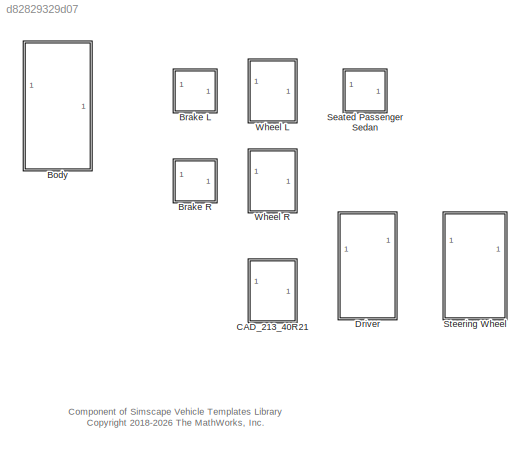
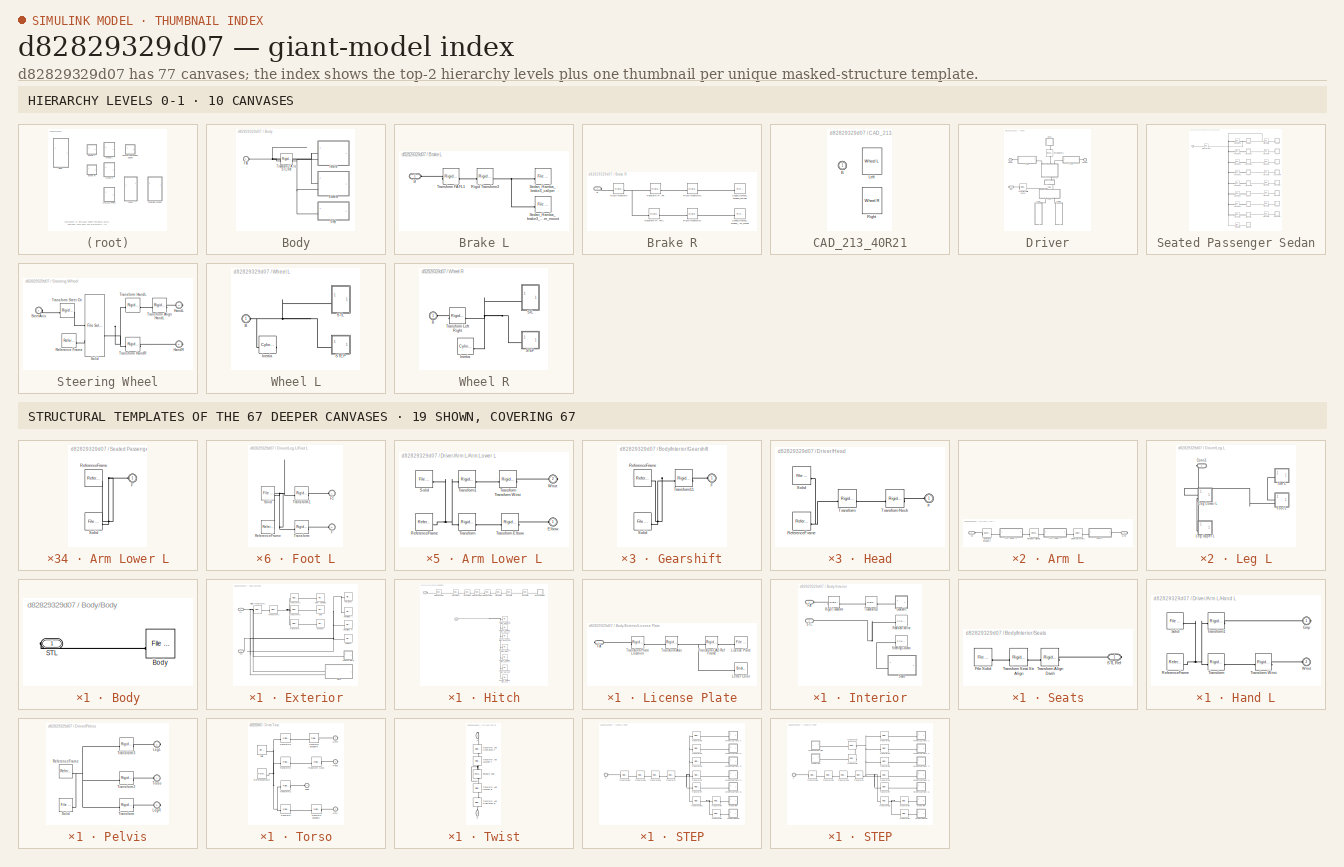
[diagram: thumbnail index - top-2 hierarchy levels (10 canvases) + 19 structural-template representatives of the remaining 67 canvases]
MODEL slx_d82829329d07
KIND library
CONFIG SolverName = VariableStepAuto
BLOCK [SubSystem] Body
BLOCK [SubSystem] Body/Body
BLOCK [Reference] Body/Body/Body  REF=sm_lib/Body Elements/File Solid
  SourceBlock = sm_lib/Body Elements/File Solid
  SourceType = File Solid
BLOCK [PMIOPort] Body/Body/STL
  Side = Right
BLOCK [SubSystem] Body/Exterior
BLOCK [Reference] Body/Exterior/Door Handles  REF=sm_lib/Body Elements/File Solid
  SourceBlock = sm_lib/Body Elements/File Solid
  SourceType = File Solid
BLOCK [Reference] Body/Exterior/Exhaust  REF=sm_lib/Body Elements/File Solid
  SourceBlock = sm_lib/Body Elements/File Solid
  SourceType = File Solid
BLOCK [PMIOPort] Body/Exterior/FA
  Side = Left
BLOCK [Reference] Body/Exterior/Grill  REF=sm_lib/Body Elements/File Solid
  SourceBlock = sm_lib/Body Elements/File Solid
  SourceType = File Solid
BLOCK [Reference] Body/Exterior/Headlight L  REF=sm_lib/Body Elements/File Solid
  SourceBlock = sm_lib/Body Elements/File Solid
  SourceType = File Solid
BLOCK [Reference] Body/Exterior/Headlight R  REF=sm_lib/Body Elements/File Solid
  SourceBlock = sm_lib/Body Elements/File Solid
  SourceType = File Solid
BLOCK [SubSystem] Body/Exterior/Hitch
BLOCK [SubSystem] Body/Exterior/Hitch/Hitch Tow Ball Nut
BLOCK [PMIOPort] Body/Exterior/Hitch/Hitch Tow Ball Nut/F
  Side = Left
BLOCK [Reference] Body/Exterior/Hitch/Hitch Tow Ball Nut/ReferenceFrame  REF=sm_lib/Frames and
Transforms/Reference
Frame
  SourceBlock = sm_lib/Frames and\nTransforms/Reference\nFrame
  SourceType = Reference\nFrame
BLOCK [Reference] Body/Exterior/Hitch/Hitch Tow Ball Nut/Solid  REF=sm_lib/Body Elements/File Solid
  SourceBlock = sm_lib/Body Elements/File Solid
  SourceType = File Solid
BLOCK [Reference] Body/Exterior/Hitch/Rigid Transform  REF=sm_lib/Frames and
Transforms/Rigid
Transform
  SourceBlock = sm_lib/Frames and\nTransforms/Rigid\nTransform
  SourceType = Rigid\nTransform
BLOCK [Reference] Body/Exterior/Hitch/Rigid Transform1  REF=sm_lib/Frames and
Transforms/Rigid
Transform
  SourceBlock = sm_lib/Frames and\nTransforms/Rigid\nTransform
  SourceType = Rigid\nTransform
BLOCK [Reference] Body/Exterior/Hitch/Rigid Transform5  REF=sm_lib/Frames and
Transforms/Rigid
Transform
  SourceBlock = sm_lib/Frames and\nTransforms/Rigid\nTransform
  SourceType = Rigid\nTransform
BLOCK [PMIOPort] Body/Exterior/Hitch/STEP
  Side = Left
BLOCK [PMIOPort] Body/Exterior/Hitch/STL
  Port = 2
  Side = Left
BLOCK [Reference] Body/Exterior/Hitch/Sedan_Hamba_hitch_bolt  REF=sm_lib/Body Elements/File Solid
  SourceBlock = sm_lib/Body Elements/File Solid
  SourceType = File Solid
BLOCK [Reference] Body/Exterior/Hitch/Sedan_Hamba_hitch_mount_1  REF=sm_lib/Body Elements/File Solid
  SourceBlock = sm_lib/Body Elements/File Solid
  SourceType = File Solid
BLOCK [Reference] Body/Exterior/Hitch/Sedan_Hamba_hitch_mount_2  REF=sm_lib/Body Elements/File Solid
  SourceBlock = sm_lib/Body Elements/File Solid
  SourceType = File Solid
BLOCK [Reference] Body/Exterior/Hitch/Sedan_Hamba_hitch_mount_nut  REF=sm_lib/Body Elements/File Solid
  SourceBlock = sm_lib/Body Elements/File Solid
  SourceType = File Solid
BLOCK [Reference] Body/Exterior/Hitch/Sedan_Hamba_hitch_throat  REF=sm_lib/Body Elements/File Solid
  SourceBlock = sm_lib/Body Elements/File Solid
  SourceType = File Solid
BLOCK [Reference] Body/Exterior/Hitch/Sedan_Hamba_hitch_tongue  REF=sm_lib/Body Elements/File Solid
  SourceBlock = sm_lib/Body Elements/File Solid
  SourceType = File Solid
BLOCK [Reference] Body/Exterior/Hitch/Sedan_Hamba_hitch_tow_ball  REF=sm_lib/Body Elements/File Solid
  SourceBlock = sm_lib/Body Elements/File Solid
  SourceType = File Solid
BLOCK [Reference] Body/Exterior/Hitch/Transform  REF=sm_lib/Frames and
Transforms/Rigid
Transform
  SourceBlock = sm_lib/Frames and\nTransforms/Rigid\nTransform
  SourceType = Rigid\nTransform
BLOCK [Reference] Body/Exterior/Hitch/Transform10  REF=sm_lib/Frames and
Transforms/Rigid
Transform
  SourceBlock = sm_lib/Frames and\nTransforms/Rigid\nTransform
  SourceType = Rigid\nTransform
BLOCK [Reference] Body/Exterior/Hitch/Transform13  REF=sm_lib/Frames and
Transforms/Rigid
Transform
  SourceBlock = sm_lib/Frames and\nTransforms/Rigid\nTransform
  SourceType = Rigid\nTransform
BLOCK [Reference] Body/Exterior/Hitch/Transform4  REF=sm_lib/Frames and
Transforms/Rigid
Transform
  SourceBlock = sm_lib/Frames and\nTransforms/Rigid\nTransform
  SourceType = Rigid\nTransform
BLOCK [Reference] Body/Exterior/Hitch/Transform9  REF=sm_lib/Frames and
Transforms/Rigid
Transform
  SourceBlock = sm_lib/Frames and\nTransforms/Rigid\nTransform
  SourceType = Rigid\nTransform
BLOCK [SubSystem] Body/Exterior/License Plate
BLOCK [PMIOPort] Body/Exterior/License Plate/FA
  Side = Right
BLOCK [Reference] Body/Exterior/License Plate/Letter Color  REF=sm_lib/Body Elements/Brick Solid
  SourceBlock = sm_lib/Body Elements/Brick Solid
  SourceType = Brick Solid
BLOCK [Reference] Body/Exterior/License Plate/License Plate  REF=sm_lib/Body Elements/File Solid
  SourceBlock = sm_lib/Body Elements/File Solid
  SourceType = File Solid
BLOCK [Reference] Body/Exterior/License Plate/Transform Axis  REF=sm_lib/Frames and
Transforms/Rigid
Transform
  SourceBlock = sm_lib/Frames and\nTransforms/Rigid\nTransform
  SourceType = Rigid\nTransform
BLOCK [Reference] Body/Exterior/License Plate/Transform CAD Ref Frame  REF=sm_lib/Frames and
Transforms/Rigid
Transform
  SourceBlock = sm_lib/Frames and\nTransforms/Rigid\nTransform
  SourceType = Rigid\nTransform
BLOCK [Reference] Body/Exterior/License Plate/Transform Plate Location  REF=sm_lib/Frames and
Transforms/Rigid
Transform
  SourceBlock = sm_lib/Frames and\nTransforms/Rigid\nTransform
  SourceType = Rigid\nTransform
BLOCK [Reference] Body/Exterior/Rigid Transform1  REF=sm_lib/Frames and
Transforms/Rigid
Transform
  SourceBlock = sm_lib/Frames and\nTransforms/Rigid\nTransform
  SourceType = Rigid\nTransform
BLOCK [PMIOPort] Body/Exterior/STL
  Port = 2
  Side = Left
BLOCK [Reference] Body/Exterior/Tail Lights  REF=sm_lib/Body Elements/File Solid
  SourceBlock = sm_lib/Body Elements/File Solid
  SourceType = File Solid
BLOCK [Reference] Body/Exterior/Transform  REF=sm_lib/Frames and
Transforms/Rigid
Transform
  SourceBlock = sm_lib/Frames and\nTransforms/Rigid\nTransform
  SourceType = Rigid\nTransform
BLOCK [Reference] Body/Exterior/Transform1  REF=sm_lib/Frames and
Transforms/Rigid
Transform
  SourceBlock = sm_lib/Frames and\nTransforms/Rigid\nTransform
  SourceType = Rigid\nTransform
BLOCK [Reference] Body/Exterior/Transform2  REF=sm_lib/Frames and
Transforms/Rigid
Transform
  SourceBlock = sm_lib/Frames and\nTransforms/Rigid\nTransform
  SourceType = Rigid\nTransform
BLOCK [Reference] Body/Exterior/Transform3  REF=sm_lib/Frames and
Transforms/Rigid
Transform
  SourceBlock = sm_lib/Frames and\nTransforms/Rigid\nTransform
  SourceType = Rigid\nTransform
BLOCK [Reference] Body/Exterior/Wipers  REF=sm_lib/Body Elements/File Solid
  SourceBlock = sm_lib/Body Elements/File Solid
  SourceType = File Solid
BLOCK [PMIOPort] Body/FA
  Side = Left
BLOCK [SubSystem] Body/Interior
BLOCK [PMIOPort] Body/Interior/FA
  Side = Left
BLOCK [SubSystem] Body/Interior/Gearshift
BLOCK [PMIOPort] Body/Interior/Gearshift/F
  Side = Left
BLOCK [Reference] Body/Interior/Gearshift/ReferenceFrame  REF=sm_lib/Frames and
Transforms/Reference
Frame
  SourceBlock = sm_lib/Frames and\nTransforms/Reference\nFrame
  SourceType = Reference\nFrame
BLOCK [Reference] Body/Interior/Gearshift/Solid  REF=sm_lib/Body Elements/File Solid
  SourceBlock = sm_lib/Body Elements/File Solid
  SourceType = File Solid
BLOCK [Reference] Body/Interior/Gearshift/Transform11  REF=sm_lib/Frames and
Transforms/Rigid
Transform
  SourceBlock = sm_lib/Frames and\nTransforms/Rigid\nTransform
  SourceType = Rigid\nTransform
BLOCK [Reference] Body/Interior/Rearview Mirror  REF=sm_lib/Body Elements/File Solid
  SourceBlock = sm_lib/Body Elements/File Solid
  SourceType = File Solid
BLOCK [Reference] Body/Interior/Rigid Transform  REF=sm_lib/Frames and
Transforms/Rigid
Transform
  SourceBlock = sm_lib/Frames and\nTransforms/Rigid\nTransform
  SourceType = Rigid\nTransform
BLOCK [PMIOPort] Body/Interior/STL
  Port = 2
  Side = Left
BLOCK [SubSystem] Body/Interior/Seats
BLOCK [Reference] Body/Interior/Seats/File Solid  REF=sm_lib/Body Elements/File Solid
  SourceBlock = sm_lib/Body Elements/File Solid
  SourceType = File Solid
BLOCK [PMIOPort] Body/Interior/Seats/STL Ref
  Side = Right
BLOCK [Reference] Body/Interior/Seats/Transform Align Dash  REF=sm_lib/Frames and
Transforms/Rigid
Transform
  SourceBlock = sm_lib/Frames and\nTransforms/Rigid\nTransform
  SourceType = Rigid\nTransform
BLOCK [Reference] Body/Interior/Seats/Transform Seat Str Align  REF=sm_lib/Frames and
Transforms/Rigid
Transform
  SourceBlock = sm_lib/Frames and\nTransforms/Rigid\nTransform
  SourceType = Rigid\nTransform
BLOCK [Reference] Body/Interior/Steering Column  REF=sm_lib/Body Elements/File Solid
  SourceBlock = sm_lib/Body Elements/File Solid
  SourceType = File Solid
BLOCK [Reference] Body/Interior/Transform13  REF=sm_lib/Frames and
Transforms/Rigid
Transform
  SourceBlock = sm_lib/Frames and\nTransforms/Rigid\nTransform
  SourceType = Rigid\nTransform
BLOCK [Reference] Body/Transform FA to STL Ref  REF=sm_lib/Frames and
Transforms/Rigid
Transform
  SourceBlock = sm_lib/Frames and\nTransforms/Rigid\nTransform
  SourceType = Rigid\nTransform
BLOCK [SubSystem] Brake L
BLOCK [PMIOPort] Brake L/B
  Side = Left
BLOCK [Reference] Brake L/Rigid Transform3  REF=sm_lib/Frames and
Transforms/Rigid
Transform
  SourceBlock = sm_lib/Frames and\nTransforms/Rigid\nTransform
  SourceType = Rigid\nTransform
BLOCK [Reference] Brake L/Sedan_Hamba_brake3_caliper  REF=sm_lib/Body Elements/File Solid
  SourceBlock = sm_lib/Body Elements/File Solid
  SourceType = File Solid
BLOCK [Reference] Brake L/Sedan_Hamba_brake3_caliper_mount  REF=sm_lib/Body Elements/File Solid
  SourceBlock = sm_lib/Body Elements/File Solid
  SourceType = File Solid
BLOCK [Reference] Brake L/Transform FA FL1  REF=sm_lib/Frames and
Transforms/Rigid
Transform
  SourceBlock = sm_lib/Frames and\nTransforms/Rigid\nTransform
  SourceType = Rigid\nTransform
BLOCK [SubSystem] Brake R
BLOCK [PMIOPort] Brake R/B
  Side = Left
BLOCK [Reference] Brake R/Rigid Transform  REF=sm_lib/Frames and
Transforms/Rigid
Transform
  SourceBlock = sm_lib/Frames and\nTransforms/Rigid\nTransform
  SourceType = Rigid\nTransform
BLOCK [Reference] Brake R/Rigid Transform1  REF=sm_lib/Frames and
Transforms/Rigid
Transform
  SourceBlock = sm_lib/Frames and\nTransforms/Rigid\nTransform
  SourceType = Rigid\nTransform
BLOCK [Reference] Brake R/Rigid Transform2  REF=sm_lib/Frames and
Transforms/Rigid
Transform
  SourceBlock = sm_lib/Frames and\nTransforms/Rigid\nTransform
  SourceType = Rigid\nTransform
BLOCK [Reference] Brake R/Sedan_Hamba_brake2_caliper  REF=sm_lib/Body Elements/File Solid
  SourceBlock = sm_lib/Body Elements/File Solid
  SourceType = File Solid
BLOCK [Reference] Brake R/Sedan_Hamba_brake2_caliper_mount  REF=sm_lib/Body Elements/File Solid
  SourceBlock = sm_lib/Body Elements/File Solid
  SourceType = File Solid
BLOCK [Reference] Brake R/Transform FA FR  REF=sm_lib/Frames and
Transforms/Rigid
Transform
  SourceBlock = sm_lib/Frames and\nTransforms/Rigid\nTransform
  SourceType = Rigid\nTransform
BLOCK [Reference] Brake R/Transform FA FR1  REF=sm_lib/Frames and
Transforms/Rigid
Transform
  SourceBlock = sm_lib/Frames and\nTransforms/Rigid\nTransform
  SourceType = Rigid\nTransform
BLOCK [SubSystem] CAD_213_40R21
  AttributesFormatString = %<LabelModeActiveChoice>
  LabelModeActiveChoice = Left
  Variant = on
  VariantControlMode = label
BLOCK [PMIOPort] CAD_213_40R21/B
  Side = Left
BLOCK [Reference] CAD_213_40R21/Left  REF=$bdroot/Wheel L
  SourceBlock = $bdroot/Wheel L
BLOCK [Reference] CAD_213_40R21/Right  REF=$bdroot/Wheel R
  SourceBlock = $bdroot/Wheel R
BLOCK [SubSystem] Driver
BLOCK [SubSystem] Driver/Arm L
  NameLocation = top
BLOCK [SubSystem] Driver/Arm L/Arm Lower L
BLOCK [PMIOPort] Driver/Arm L/Arm Lower L/Elbow
  Side = Left
BLOCK [Reference] Driver/Arm L/Arm Lower L/ReferenceFrame  REF=sm_lib/Frames and
Transforms/Reference
Frame
  SourceBlock = sm_lib/Frames and\nTransforms/Reference\nFrame
  SourceType = Reference\nFrame
BLOCK [Reference] Driver/Arm L/Arm Lower L/Solid  REF=sm_lib/Body Elements/File Solid
  SourceBlock = sm_lib/Body Elements/File Solid
  SourceType = File Solid
BLOCK [Reference] Driver/Arm L/Arm Lower L/Transform  REF=sm_lib/Frames and
Transforms/Rigid
Transform
  SourceBlock = sm_lib/Frames and\nTransforms/Rigid\nTransform
  SourceType = Rigid\nTransform
BLOCK [Reference] Driver/Arm L/Arm Lower L/Transform Elbow  REF=sm_lib/Frames and
Transforms/Rigid
Transform
  SourceBlock = sm_lib/Frames and\nTransforms/Rigid\nTransform
  SourceType = Rigid\nTransform
BLOCK [Reference] Driver/Arm L/Arm Lower L/Transform Transform Wrist  REF=sm_lib/Frames and
Transforms/Rigid
Transform
  SourceBlock = sm_lib/Frames and\nTransforms/Rigid\nTransform
  SourceType = Rigid\nTransform
BLOCK [Reference] Driver/Arm L/Arm Lower L/Transform1  REF=sm_lib/Frames and
Transforms/Rigid
Transform
  SourceBlock = sm_lib/Frames and\nTransforms/Rigid\nTransform
  SourceType = Rigid\nTransform
BLOCK [PMIOPort] Driver/Arm L/Arm Lower L/Wrist
  Port = 2
  Side = Right
BLOCK [SubSystem] Driver/Arm L/Arm Upper L
BLOCK [PMIOPort] Driver/Arm L/Arm Upper L/Elbow
  Port = 2
  Side = Right
BLOCK [Reference] Driver/Arm L/Arm Upper L/ReferenceFrame  REF=sm_lib/Frames and
Transforms/Reference
Frame
  SourceBlock = sm_lib/Frames and\nTransforms/Reference\nFrame
  SourceType = Reference\nFrame
BLOCK [PMIOPort] Driver/Arm L/Arm Upper L/Shoulder
  Side = Left
BLOCK [Reference] Driver/Arm L/Arm Upper L/Solid  REF=sm_lib/Body Elements/File Solid
  SourceBlock = sm_lib/Body Elements/File Solid
  SourceType = File Solid
BLOCK [Reference] Driver/Arm L/Arm Upper L/Transform  REF=sm_lib/Frames and
Transforms/Rigid
Transform
  SourceBlock = sm_lib/Frames and\nTransforms/Rigid\nTransform
  SourceType = Rigid\nTransform
BLOCK [Reference] Driver/Arm L/Arm Upper L/Transform Elbow  REF=sm_lib/Frames and
Transforms/Rigid
Transform
  SourceBlock = sm_lib/Frames and\nTransforms/Rigid\nTransform
  SourceType = Rigid\nTransform
BLOCK [Reference] Driver/Arm L/Arm Upper L/Transform Shoulder  REF=sm_lib/Frames and
Transforms/Rigid
Transform
  SourceBlock = sm_lib/Frames and\nTransforms/Rigid\nTransform
  SourceType = Rigid\nTransform
BLOCK [Reference] Driver/Arm L/Arm Upper L/Transform1  REF=sm_lib/Frames and
Transforms/Rigid
Transform
  SourceBlock = sm_lib/Frames and\nTransforms/Rigid\nTransform
  SourceType = Rigid\nTransform
BLOCK [PMIOPort] Driver/Arm L/Grip
  Port = 2
  Side = Right
BLOCK [SubSystem] Driver/Arm L/Hand L
BLOCK [PMIOPort] Driver/Arm L/Hand L/Grip
  Side = Right
BLOCK [Reference] Driver/Arm L/Hand L/ReferenceFrame  REF=sm_lib/Frames and
Transforms/Reference
Frame
  SourceBlock = sm_lib/Frames and\nTransforms/Reference\nFrame
  SourceType = Reference\nFrame
BLOCK [Reference] Driver/Arm L/Hand L/Solid  REF=sm_lib/Body Elements/File Solid
  SourceBlock = sm_lib/Body Elements/File Solid
  SourceType = File Solid
BLOCK [Reference] Driver/Arm L/Hand L/Transform  REF=sm_lib/Frames and
Transforms/Rigid
Transform
  SourceBlock = sm_lib/Frames and\nTransforms/Rigid\nTransform
  SourceType = Rigid\nTransform
BLOCK [Reference] Driver/Arm L/Hand L/Transform Wrist  REF=sm_lib/Frames and
Transforms/Rigid
Transform
  SourceBlock = sm_lib/Frames and\nTransforms/Rigid\nTransform
  SourceType = Rigid\nTransform
BLOCK [Reference] Driver/Arm L/Hand L/Transform1  REF=sm_lib/Frames and
Transforms/Rigid
Transform
  SourceBlock = sm_lib/Frames and\nTransforms/Rigid\nTransform
  SourceType = Rigid\nTransform
BLOCK [PMIOPort] Driver/Arm L/Hand L/Wrist
  Port = 2
  Side = Left
BLOCK [Reference] Driver/Arm L/Revolute ElbowL  REF=sm_lib/Joints/Revolute Joint
  SourceBlock = sm_lib/Joints/Revolute Joint
  SourceType = Revolute Joint
BLOCK [PMIOPort] Driver/Arm L/Sh
  Side = Left
BLOCK [Reference] Driver/Arm L/Spherical ShoulderL  REF=sm_lib/Joints/Spherical
Joint
  SourceBlock = sm_lib/Joints/Spherical\nJoint
  SourceType = Spherical\nJoint
BLOCK [Reference] Driver/Arm L/Universal WristL  REF=sm_lib/Joints/Universal
Joint
  SourceBlock = sm_lib/Joints/Universal\nJoint
  SourceType = Universal\nJoint
BLOCK [SubSystem] Driver/Arm R
BLOCK [SubSystem] Driver/Arm R/Arm Lower R
BLOCK [PMIOPort] Driver/Arm R/Arm Lower R/Elbow
  Side = Left
BLOCK [Reference] Driver/Arm R/Arm Lower R/ReferenceFrame  REF=sm_lib/Frames and
Transforms/Reference
Frame
  SourceBlock = sm_lib/Frames and\nTransforms/Reference\nFrame
  SourceType = Reference\nFrame
BLOCK [Reference] Driver/Arm R/Arm Lower R/Solid  REF=sm_lib/Body Elements/File Solid
  SourceBlock = sm_lib/Body Elements/File Solid
  SourceType = File Solid
BLOCK [Reference] Driver/Arm R/Arm Lower R/Transform  REF=sm_lib/Frames and
Transforms/Rigid
Transform
  SourceBlock = sm_lib/Frames and\nTransforms/Rigid\nTransform
  SourceType = Rigid\nTransform
BLOCK [Reference] Driver/Arm R/Arm Lower R/Transform Elbow  REF=sm_lib/Frames and
Transforms/Rigid
Transform
  SourceBlock = sm_lib/Frames and\nTransforms/Rigid\nTransform
  SourceType = Rigid\nTransform
BLOCK [Reference] Driver/Arm R/Arm Lower R/Transform Wrist  REF=sm_lib/Frames and
Transforms/Rigid
Transform
  SourceBlock = sm_lib/Frames and\nTransforms/Rigid\nTransform
  SourceType = Rigid\nTransform
BLOCK [Reference] Driver/Arm R/Arm Lower R/Transform1  REF=sm_lib/Frames and
Transforms/Rigid
Transform
  SourceBlock = sm_lib/Frames and\nTransforms/Rigid\nTransform
  SourceType = Rigid\nTransform
BLOCK [PMIOPort] Driver/Arm R/Arm Lower R/Wrist
  Port = 2
  Side = Right
BLOCK [SubSystem] Driver/Arm R/Arm Upper R
BLOCK [PMIOPort] Driver/Arm R/Arm Upper R/Elbow
  Port = 2
  Side = Right
BLOCK [Reference] Driver/Arm R/Arm Upper R/ReferenceFrame  REF=sm_lib/Frames and
Transforms/Reference
Frame
  SourceBlock = sm_lib/Frames and\nTransforms/Reference\nFrame
  SourceType = Reference\nFrame
BLOCK [PMIOPort] Driver/Arm R/Arm Upper R/Shoulder
  Side = Left
BLOCK [Reference] Driver/Arm R/Arm Upper R/Solid  REF=sm_lib/Body Elements/File Solid
  SourceBlock = sm_lib/Body Elements/File Solid
  SourceType = File Solid
BLOCK [Reference] Driver/Arm R/Arm Upper R/Transform  REF=sm_lib/Frames and
Transforms/Rigid
Transform
  SourceBlock = sm_lib/Frames and\nTransforms/Rigid\nTransform
  SourceType = Rigid\nTransform
BLOCK [Reference] Driver/Arm R/Arm Upper R/Transform Elbow  REF=sm_lib/Frames and
Transforms/Rigid
Transform
  SourceBlock = sm_lib/Frames and\nTransforms/Rigid\nTransform
  SourceType = Rigid\nTransform
BLOCK [Reference] Driver/Arm R/Arm Upper R/Transform Shoulder  REF=sm_lib/Frames and
Transforms/Rigid
Transform
  SourceBlock = sm_lib/Frames and\nTransforms/Rigid\nTransform
  SourceType = Rigid\nTransform
BLOCK [Reference] Driver/Arm R/Arm Upper R/Transform1  REF=sm_lib/Frames and
Transforms/Rigid
Transform
  SourceBlock = sm_lib/Frames and\nTransforms/Rigid\nTransform
  SourceType = Rigid\nTransform
BLOCK [PMIOPort] Driver/Arm R/Grip
  Side = Right
BLOCK [SubSystem] Driver/Arm R/Hand R
BLOCK [PMIOPort] Driver/Arm R/Hand R/Grip
  Side = Right
BLOCK [Reference] Driver/Arm R/Hand R/ReferenceFrame  REF=sm_lib/Frames and
Transforms/Reference
Frame
  SourceBlock = sm_lib/Frames and\nTransforms/Reference\nFrame
  SourceType = Reference\nFrame
BLOCK [Reference] Driver/Arm R/Hand R/Solid  REF=sm_lib/Body Elements/File Solid
  SourceBlock = sm_lib/Body Elements/File Solid
  SourceType = File Solid
BLOCK [Reference] Driver/Arm R/Hand R/Transform  REF=sm_lib/Frames and
Transforms/Rigid
Transform
  SourceBlock = sm_lib/Frames and\nTransforms/Rigid\nTransform
  SourceType = Rigid\nTransform
BLOCK [Reference] Driver/Arm R/Hand R/Transform Grip  REF=sm_lib/Frames and
Transforms/Rigid
Transform
  SourceBlock = sm_lib/Frames and\nTransforms/Rigid\nTransform
  SourceType = Rigid\nTransform
BLOCK [Reference] Driver/Arm R/Hand R/Transform Wrist  REF=sm_lib/Frames and
Transforms/Rigid
Transform
  SourceBlock = sm_lib/Frames and\nTransforms/Rigid\nTransform
  SourceType = Rigid\nTransform
BLOCK [Reference] Driver/Arm R/Hand R/Transform1  REF=sm_lib/Frames and
Transforms/Rigid
Transform
  SourceBlock = sm_lib/Frames and\nTransforms/Rigid\nTransform
  SourceType = Rigid\nTransform
BLOCK [PMIOPort] Driver/Arm R/Hand R/Wrist
  Port = 2
  Side = Left
BLOCK [Reference] Driver/Arm R/Revolute ElbowR  REF=sm_lib/Joints/Revolute Joint
  SourceBlock = sm_lib/Joints/Revolute Joint
  SourceType = Revolute Joint
BLOCK [PMIOPort] Driver/Arm R/Sh
  Port = 2
  Side = Left
BLOCK [Reference] Driver/Arm R/Spherical ShoulderR  REF=sm_lib/Joints/Spherical
Joint
  SourceBlock = sm_lib/Joints/Spherical\nJoint
  SourceType = Spherical\nJoint
BLOCK [Reference] Driver/Arm R/Universal WristR  REF=sm_lib/Joints/Universal
Joint
  SourceBlock = sm_lib/Joints/Universal\nJoint
  SourceType = Universal\nJoint
BLOCK [PMIOPort] Driver/HandL
  Port = 2
  Side = Left
BLOCK [PMIOPort] Driver/HandR
  Side = Left
BLOCK [SubSystem] Driver/Head
  NameLocation = right
BLOCK [PMIOPort] Driver/Head/F
  Side = Left
BLOCK [Reference] Driver/Head/ReferenceFrame  REF=sm_lib/Frames and
Transforms/Reference
Frame
  SourceBlock = sm_lib/Frames and\nTransforms/Reference\nFrame
  SourceType = Reference\nFrame
BLOCK [Reference] Driver/Head/Solid  REF=sm_lib/Body Elements/File Solid
  SourceBlock = sm_lib/Body Elements/File Solid
  SourceType = File Solid
BLOCK [Reference] Driver/Head/Transform  REF=sm_lib/Frames and
Transforms/Rigid
Transform
  SourceBlock = sm_lib/Frames and\nTransforms/Rigid\nTransform
  SourceType = Rigid\nTransform
BLOCK [Reference] Driver/Head/Transform Neck  REF=sm_lib/Frames and
Transforms/Rigid
Transform
  SourceBlock = sm_lib/Frames and\nTransforms/Rigid\nTransform
  SourceType = Rigid\nTransform
BLOCK [SubSystem] Driver/Leg L
  NameLocation = left
BLOCK [PMIOPort] Driver/Leg L/Conn1
  Side = Left
BLOCK [SubSystem] Driver/Leg L/Foot L
BLOCK [PMIOPort] Driver/Leg L/Foot L/F
  Port = 2
  Side = Left
BLOCK [PMIOPort] Driver/Leg L/Foot L/F1
  Side = Left
BLOCK [Reference] Driver/Leg L/Foot L/ReferenceFrame  REF=sm_lib/Frames and
Transforms/Reference
Frame
  SourceBlock = sm_lib/Frames and\nTransforms/Reference\nFrame
  SourceType = Reference\nFrame
BLOCK [Reference] Driver/Leg L/Foot L/Solid  REF=sm_lib/Body Elements/File Solid
  SourceBlock = sm_lib/Body Elements/File Solid
  SourceType = File Solid
BLOCK [Reference] Driver/Leg L/Foot L/Transform  REF=sm_lib/Frames and
Transforms/Rigid
Transform
  SourceBlock = sm_lib/Frames and\nTransforms/Rigid\nTransform
  SourceType = Rigid\nTransform
BLOCK [Reference] Driver/Leg L/Foot L/Transform1  REF=sm_lib/Frames and
Transforms/Rigid
Transform
  SourceBlock = sm_lib/Frames and\nTransforms/Rigid\nTransform
  SourceType = Rigid\nTransform
BLOCK [SubSystem] Driver/Leg L/Leg Lower L
BLOCK [PMIOPort] Driver/Leg L/Leg Lower L/F
  Side = Left
BLOCK [PMIOPort] Driver/Leg L/Leg Lower L/F1
  Port = 2
  Side = Left
BLOCK [Reference] Driver/Leg L/Leg Lower L/ReferenceFrame  REF=sm_lib/Frames and
Transforms/Reference
Frame
  SourceBlock = sm_lib/Frames and\nTransforms/Reference\nFrame
  SourceType = Reference\nFrame
BLOCK [Reference] Driver/Leg L/Leg Lower L/Solid  REF=sm_lib/Body Elements/File Solid
  SourceBlock = sm_lib/Body Elements/File Solid
  SourceType = File Solid
BLOCK [Reference] Driver/Leg L/Leg Lower L/Transform  REF=sm_lib/Frames and
Transforms/Rigid
Transform
  SourceBlock = sm_lib/Frames and\nTransforms/Rigid\nTransform
  SourceType = Rigid\nTransform
BLOCK [Reference] Driver/Leg L/Leg Lower L/Transform1  REF=sm_lib/Frames and
Transforms/Rigid
Transform
  SourceBlock = sm_lib/Frames and\nTransforms/Rigid\nTransform
  SourceType = Rigid\nTransform
BLOCK [SubSystem] Driver/Leg L/Leg Upper L
BLOCK [PMIOPort] Driver/Leg L/Leg Upper L/F
  Side = Left
BLOCK [PMIOPort] Driver/Leg L/Leg Upper L/F1
  Port = 2
  Side = Left
BLOCK [Reference] Driver/Leg L/Leg Upper L/ReferenceFrame  REF=sm_lib/Frames and
Transforms/Reference
Frame
  SourceBlock = sm_lib/Frames and\nTransforms/Reference\nFrame
  SourceType = Reference\nFrame
BLOCK [Reference] Driver/Leg L/Leg Upper L/Solid  REF=sm_lib/Body Elements/File Solid
  SourceBlock = sm_lib/Body Elements/File Solid
  SourceType = File Solid
BLOCK [Reference] Driver/Leg L/Leg Upper L/Transform  REF=sm_lib/Frames and
Transforms/Rigid
Transform
  SourceBlock = sm_lib/Frames and\nTransforms/Rigid\nTransform
  SourceType = Rigid\nTransform
BLOCK [Reference] Driver/Leg L/Leg Upper L/Transform1  REF=sm_lib/Frames and
Transforms/Rigid
Transform
  SourceBlock = sm_lib/Frames and\nTransforms/Rigid\nTransform
  SourceType = Rigid\nTransform
BLOCK [SubSystem] Driver/Leg L/Toe L
BLOCK [PMIOPort] Driver/Leg L/Toe L/F
  Side = Left
BLOCK [Reference] Driver/Leg L/Toe L/ReferenceFrame  REF=sm_lib/Frames and
Transforms/Reference
Frame
  SourceBlock = sm_lib/Frames and\nTransforms/Reference\nFrame
  SourceType = Reference\nFrame
BLOCK [Reference] Driver/Leg L/Toe L/Solid  REF=sm_lib/Body Elements/File Solid
  SourceBlock = sm_lib/Body Elements/File Solid
  SourceType = File Solid
BLOCK [Reference] Driver/Leg L/Toe L/Transform  REF=sm_lib/Frames and
Transforms/Rigid
Transform
  SourceBlock = sm_lib/Frames and\nTransforms/Rigid\nTransform
  SourceType = Rigid\nTransform
BLOCK [SubSystem] Driver/Leg R
  NameLocation = right
BLOCK [PMIOPort] Driver/Leg R/Conn1
  Side = Left
BLOCK [SubSystem] Driver/Leg R/Foot R
BLOCK [PMIOPort] Driver/Leg R/Foot R/F
  Port = 2
  Side = Left
BLOCK [PMIOPort] Driver/Leg R/Foot R/F1
  Side = Left
BLOCK [Reference] Driver/Leg R/Foot R/ReferenceFrame  REF=sm_lib/Frames and
Transforms/Reference
Frame
  SourceBlock = sm_lib/Frames and\nTransforms/Reference\nFrame
  SourceType = Reference\nFrame
BLOCK [Reference] Driver/Leg R/Foot R/Solid  REF=sm_lib/Body Elements/File Solid
  SourceBlock = sm_lib/Body Elements/File Solid
  SourceType = File Solid
BLOCK [Reference] Driver/Leg R/Foot R/Transform  REF=sm_lib/Frames and
Transforms/Rigid
Transform
  SourceBlock = sm_lib/Frames and\nTransforms/Rigid\nTransform
  SourceType = Rigid\nTransform
BLOCK [Reference] Driver/Leg R/Foot R/Transform1  REF=sm_lib/Frames and
Transforms/Rigid
Transform
  SourceBlock = sm_lib/Frames and\nTransforms/Rigid\nTransform
  SourceType = Rigid\nTransform
BLOCK [SubSystem] Driver/Leg R/Leg Lower R
BLOCK [PMIOPort] Driver/Leg R/Leg Lower R/F
  Port = 2
  Side = Left
BLOCK [PMIOPort] Driver/Leg R/Leg Lower R/F1
  Side = Left
BLOCK [Reference] Driver/Leg R/Leg Lower R/ReferenceFrame  REF=sm_lib/Frames and
Transforms/Reference
Frame
  SourceBlock = sm_lib/Frames and\nTransforms/Reference\nFrame
  SourceType = Reference\nFrame
BLOCK [Reference] Driver/Leg R/Leg Lower R/Solid  REF=sm_lib/Body Elements/File Solid
  SourceBlock = sm_lib/Body Elements/File Solid
  SourceType = File Solid
BLOCK [Reference] Driver/Leg R/Leg Lower R/Transform  REF=sm_lib/Frames and
Transforms/Rigid
Transform
  SourceBlock = sm_lib/Frames and\nTransforms/Rigid\nTransform
  SourceType = Rigid\nTransform
BLOCK [Reference] Driver/Leg R/Leg Lower R/Transform1  REF=sm_lib/Frames and
Transforms/Rigid
Transform
  SourceBlock = sm_lib/Frames and\nTransforms/Rigid\nTransform
  SourceType = Rigid\nTransform
BLOCK [SubSystem] Driver/Leg R/Leg Upper R
BLOCK [PMIOPort] Driver/Leg R/Leg Upper R/F
  Side = Left
BLOCK [PMIOPort] Driver/Leg R/Leg Upper R/F1
  Port = 2
  Side = Left
BLOCK [Reference] Driver/Leg R/Leg Upper R/ReferenceFrame  REF=sm_lib/Frames and
Transforms/Reference
Frame
  SourceBlock = sm_lib/Frames and\nTransforms/Reference\nFrame
  SourceType = Reference\nFrame
BLOCK [Reference] Driver/Leg R/Leg Upper R/Solid  REF=sm_lib/Body Elements/File Solid
  SourceBlock = sm_lib/Body Elements/File Solid
  SourceType = File Solid
BLOCK [Reference] Driver/Leg R/Leg Upper R/Transform  REF=sm_lib/Frames and
Transforms/Rigid
Transform
  SourceBlock = sm_lib/Frames and\nTransforms/Rigid\nTransform
  SourceType = Rigid\nTransform
BLOCK [Reference] Driver/Leg R/Leg Upper R/Transform1  REF=sm_lib/Frames and
Transforms/Rigid
Transform
  SourceBlock = sm_lib/Frames and\nTransforms/Rigid\nTransform
  SourceType = Rigid\nTransform
BLOCK [SubSystem] Driver/Leg R/Toe R
BLOCK [PMIOPort] Driver/Leg R/Toe R/F
  Side = Left
BLOCK [Reference] Driver/Leg R/Toe R/ReferenceFrame  REF=sm_lib/Frames and
Transforms/Reference
Frame
  SourceBlock = sm_lib/Frames and\nTransforms/Reference\nFrame
  SourceType = Reference\nFrame
BLOCK [Reference] Driver/Leg R/Toe R/Solid  REF=sm_lib/Body Elements/File Solid
  SourceBlock = sm_lib/Body Elements/File Solid
  SourceType = File Solid
BLOCK [Reference] Driver/Leg R/Toe R/Transform  REF=sm_lib/Frames and
Transforms/Rigid
Transform
  SourceBlock = sm_lib/Frames and\nTransforms/Rigid\nTransform
  SourceType = Rigid\nTransform
BLOCK [SubSystem] Driver/Pelvis
  NameLocation = left
BLOCK [PMIOPort] Driver/Pelvis/LegL
  Port = 2
  Side = Right
BLOCK [PMIOPort] Driver/Pelvis/LegR
  Port = 3
  Side = Right
BLOCK [Reference] Driver/Pelvis/ReferenceFrame  REF=sm_lib/Frames and
Transforms/Reference
Frame
  SourceBlock = sm_lib/Frames and\nTransforms/Reference\nFrame
  SourceType = Reference\nFrame
BLOCK [Reference] Driver/Pelvis/Solid  REF=sm_lib/Body Elements/File Solid
  SourceBlock = sm_lib/Body Elements/File Solid
  SourceType = File Solid
BLOCK [PMIOPort] Driver/Pelvis/Torso
  Side = Left
BLOCK [Reference] Driver/Pelvis/Transform  REF=sm_lib/Frames and
Transforms/Rigid
Transform
  SourceBlock = sm_lib/Frames and\nTransforms/Rigid\nTransform
  SourceType = Rigid\nTransform
BLOCK [Reference] Driver/Pelvis/Transform2  REF=sm_lib/Frames and
Transforms/Rigid
Transform
  SourceBlock = sm_lib/Frames and\nTransforms/Rigid\nTransform
  SourceType = Rigid\nTransform
BLOCK [Reference] Driver/Pelvis/Transform3  REF=sm_lib/Frames and
Transforms/Rigid
Transform
  SourceBlock = sm_lib/Frames and\nTransforms/Rigid\nTransform
  SourceType = Rigid\nTransform
BLOCK [PMIOPort] Driver/Ref
  Port = 3
  Side = Right
BLOCK [Reference] Driver/Revolute Neck  REF=sm_lib/Joints/Revolute Joint
  NameLocation = right
  SourceBlock = sm_lib/Joints/Revolute Joint
  SourceType = Revolute Joint
BLOCK [SubSystem] Driver/Torso
  NameLocation = right
BLOCK [PMIOPort] Driver/Torso/ArmL
  Port = 2
  Side = Right
BLOCK [PMIOPort] Driver/Torso/ArmR
  Port = 4
  Side = Right
BLOCK [PMIOPort] Driver/Torso/Head
  Port = 3
  Side = Right
BLOCK [PMIOPort] Driver/Torso/Pelvis
  Side = Left
BLOCK [Reference] Driver/Torso/ReferenceFrame  REF=sm_lib/Frames and
Transforms/Reference
Frame
  SourceBlock = sm_lib/Frames and\nTransforms/Reference\nFrame
  SourceType = Reference\nFrame
BLOCK [Reference] Driver/Torso/Solid  REF=sm_lib/Body Elements/File Solid
  SourceBlock = sm_lib/Body Elements/File Solid
  SourceType = File Solid
BLOCK [Reference] Driver/Torso/Transform  REF=sm_lib/Frames and
Transforms/Rigid
Transform
  SourceBlock = sm_lib/Frames and\nTransforms/Rigid\nTransform
  SourceType = Rigid\nTransform
BLOCK [Reference] Driver/Torso/Transform Neck  REF=sm_lib/Frames and
Transforms/Rigid
Transform
  SourceBlock = sm_lib/Frames and\nTransforms/Rigid\nTransform
  SourceType = Rigid\nTransform
BLOCK [Reference] Driver/Torso/Transform ShoulderL  REF=sm_lib/Frames and
Transforms/Rigid
Transform
  SourceBlock = sm_lib/Frames and\nTransforms/Rigid\nTransform
  SourceType = Rigid\nTransform
BLOCK [Reference] Driver/Torso/Transform ShoulderR  REF=sm_lib/Frames and
Transforms/Rigid
Transform
  SourceBlock = sm_lib/Frames and\nTransforms/Rigid\nTransform
  SourceType = Rigid\nTransform
BLOCK [Reference] Driver/Torso/Transform1  REF=sm_lib/Frames and
Transforms/Rigid
Transform
  SourceBlock = sm_lib/Frames and\nTransforms/Rigid\nTransform
  SourceType = Rigid\nTransform
BLOCK [Reference] Driver/Torso/Transform2  REF=sm_lib/Frames and
Transforms/Rigid
Transform
  SourceBlock = sm_lib/Frames and\nTransforms/Rigid\nTransform
  SourceType = Rigid\nTransform
BLOCK [Reference] Driver/Torso/Transform3  REF=sm_lib/Frames and
Transforms/Rigid
Transform
  SourceBlock = sm_lib/Frames and\nTransforms/Rigid\nTransform
  SourceType = Rigid\nTransform
BLOCK [Reference] Driver/Transform W to Driver  REF=sm_lib/Frames and
Transforms/Rigid
Transform
  SourceBlock = sm_lib/Frames and\nTransforms/Rigid\nTransform
  SourceType = Rigid\nTransform
BLOCK [SubSystem] Driver/Twist
  NameLocation = right
BLOCK [PMIOPort] Driver/Twist/B
  NameLocation = right
  Port = 2
  Side = Left
BLOCK [Reference] Driver/Twist/Revolute Joint  REF=sm_lib/Joints/Revolute Joint
  Commented = on
  NameLocation = right
  SourceBlock = sm_lib/Joints/Revolute Joint
  SourceType = Revolute Joint
BLOCK [PMIOPort] Driver/Twist/T
  NameLocation = left
  Side = Right
BLOCK [Reference] Driver/Twist/Transform Axis Location B  REF=sm_lib/Frames and
Transforms/Rigid
Transform
  NameLocation = right
  SourceBlock = sm_lib/Frames and\nTransforms/Rigid\nTransform
  SourceType = Rigid\nTransform
BLOCK [Reference] Driver/Twist/Transform Axis Location F  REF=sm_lib/Frames and
Transforms/Rigid
Transform
  NameLocation = right
  SourceBlock = sm_lib/Frames and\nTransforms/Rigid\nTransform
  SourceType = Rigid\nTransform
BLOCK [Reference] Driver/Twist/Transform Axis Orientation B  REF=sm_lib/Frames and
Transforms/Rigid
Transform
  NameLocation = right
  SourceBlock = sm_lib/Frames and\nTransforms/Rigid\nTransform
  SourceType = Rigid\nTransform
BLOCK [Reference] Driver/Twist/Transform Axis Orientation F  REF=sm_lib/Frames and
Transforms/Rigid
Transform
  NameLocation = right
  SourceBlock = sm_lib/Frames and\nTransforms/Rigid\nTransform
  SourceType = Rigid\nTransform
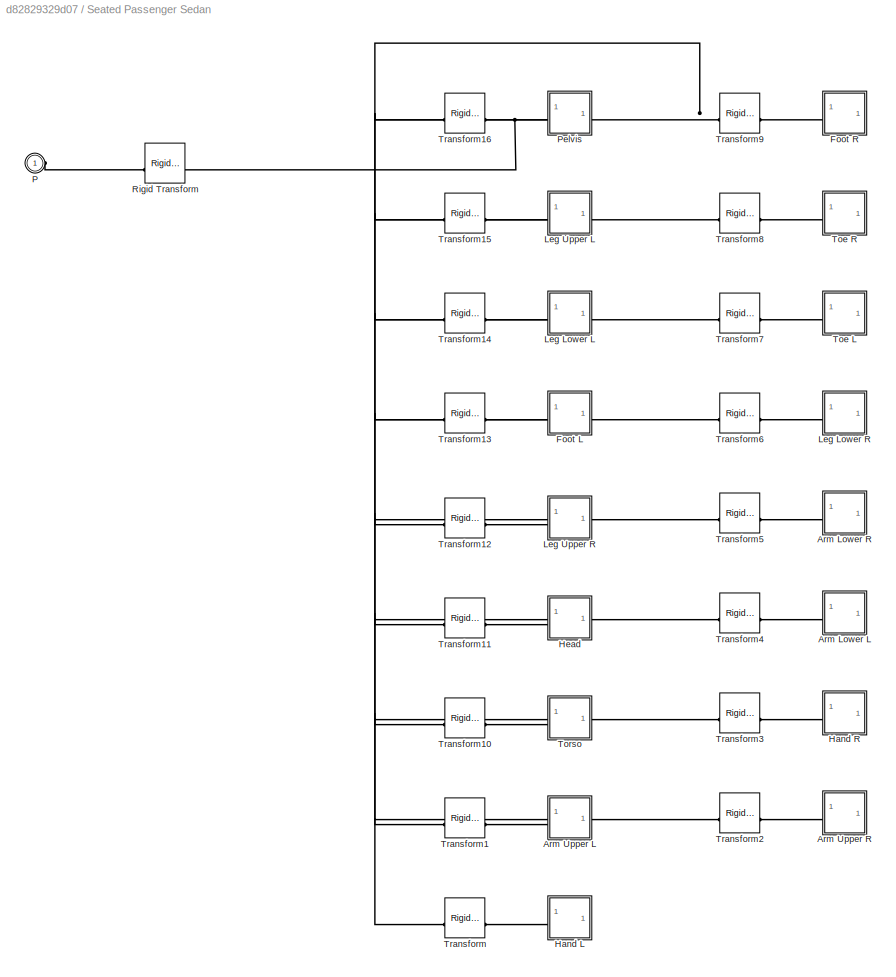
BLOCK [SubSystem] Seated Passenger Sedan
  VariantControl = Variant1
BLOCK [SubSystem] Seated Passenger Sedan/Arm Lower L
BLOCK [PMIOPort] Seated Passenger Sedan/Arm Lower L/F
  Side = Left
BLOCK [Reference] Seated Passenger Sedan/Arm Lower L/ReferenceFrame  REF=sm_lib/Frames and
Transforms/Reference
Frame
  SourceBlock = sm_lib/Frames and\nTransforms/Reference\nFrame
  SourceType = Reference\nFrame
BLOCK [Reference] Seated Passenger Sedan/Arm Lower L/Solid  REF=sm_lib/Body Elements/File Solid
  SourceBlock = sm_lib/Body Elements/File Solid
  SourceType = File Solid
BLOCK [SubSystem] Seated Passenger Sedan/Arm Lower R
BLOCK [PMIOPort] Seated Passenger Sedan/Arm Lower R/F
  Side = Left
BLOCK [Reference] Seated Passenger Sedan/Arm Lower R/ReferenceFrame  REF=sm_lib/Frames and
Transforms/Reference
Frame
  SourceBlock = sm_lib/Frames and\nTransforms/Reference\nFrame
  SourceType = Reference\nFrame
BLOCK [Reference] Seated Passenger Sedan/Arm Lower R/Solid  REF=sm_lib/Body Elements/File Solid
  SourceBlock = sm_lib/Body Elements/File Solid
  SourceType = File Solid
BLOCK [SubSystem] Seated Passenger Sedan/Arm Upper L
BLOCK [PMIOPort] Seated Passenger Sedan/Arm Upper L/F
  Side = Left
BLOCK [Reference] Seated Passenger Sedan/Arm Upper L/ReferenceFrame  REF=sm_lib/Frames and
Transforms/Reference
Frame
  SourceBlock = sm_lib/Frames and\nTransforms/Reference\nFrame
  SourceType = Reference\nFrame
BLOCK [Reference] Seated Passenger Sedan/Arm Upper L/Solid  REF=sm_lib/Body Elements/File Solid
  SourceBlock = sm_lib/Body Elements/File Solid
  SourceType = File Solid
BLOCK [SubSystem] Seated Passenger Sedan/Arm Upper R
BLOCK [PMIOPort] Seated Passenger Sedan/Arm Upper R/F
  Side = Left
BLOCK [Reference] Seated Passenger Sedan/Arm Upper R/ReferenceFrame  REF=sm_lib/Frames and
Transforms/Reference
Frame
  SourceBlock = sm_lib/Frames and\nTransforms/Reference\nFrame
  SourceType = Reference\nFrame
BLOCK [Reference] Seated Passenger Sedan/Arm Upper R/Solid  REF=sm_lib/Body Elements/File Solid
  SourceBlock = sm_lib/Body Elements/File Solid
  SourceType = File Solid
BLOCK [SubSystem] Seated Passenger Sedan/Foot L
BLOCK [PMIOPort] Seated Passenger Sedan/Foot L/F
  Side = Left
BLOCK [Reference] Seated Passenger Sedan/Foot L/ReferenceFrame  REF=sm_lib/Frames and
Transforms/Reference
Frame
  SourceBlock = sm_lib/Frames and\nTransforms/Reference\nFrame
  SourceType = Reference\nFrame
BLOCK [Reference] Seated Passenger Sedan/Foot L/Solid  REF=sm_lib/Body Elements/File Solid
  SourceBlock = sm_lib/Body Elements/File Solid
  SourceType = File Solid
BLOCK [SubSystem] Seated Passenger Sedan/Foot R
BLOCK [PMIOPort] Seated Passenger Sedan/Foot R/F
  Side = Left
BLOCK [Reference] Seated Passenger Sedan/Foot R/ReferenceFrame  REF=sm_lib/Frames and
Transforms/Reference
Frame
  SourceBlock = sm_lib/Frames and\nTransforms/Reference\nFrame
  SourceType = Reference\nFrame
BLOCK [Reference] Seated Passenger Sedan/Foot R/Solid  REF=sm_lib/Body Elements/File Solid
  SourceBlock = sm_lib/Body Elements/File Solid
  SourceType = File Solid
BLOCK [SubSystem] Seated Passenger Sedan/Hand L
BLOCK [PMIOPort] Seated Passenger Sedan/Hand L/F
  Side = Left
BLOCK [Reference] Seated Passenger Sedan/Hand L/ReferenceFrame  REF=sm_lib/Frames and
Transforms/Reference
Frame
  SourceBlock = sm_lib/Frames and\nTransforms/Reference\nFrame
  SourceType = Reference\nFrame
BLOCK [Reference] Seated Passenger Sedan/Hand L/Solid  REF=sm_lib/Body Elements/File Solid
  SourceBlock = sm_lib/Body Elements/File Solid
  SourceType = File Solid
BLOCK [SubSystem] Seated Passenger Sedan/Hand R
BLOCK [PMIOPort] Seated Passenger Sedan/Hand R/F
  Side = Left
BLOCK [Reference] Seated Passenger Sedan/Hand R/ReferenceFrame  REF=sm_lib/Frames and
Transforms/Reference
Frame
  SourceBlock = sm_lib/Frames and\nTransforms/Reference\nFrame
  SourceType = Reference\nFrame
BLOCK [Reference] Seated Passenger Sedan/Hand R/Solid  REF=sm_lib/Body Elements/File Solid
  SourceBlock = sm_lib/Body Elements/File Solid
  SourceType = File Solid
BLOCK [SubSystem] Seated Passenger Sedan/Head
BLOCK [PMIOPort] Seated Passenger Sedan/Head/F
  Side = Left
BLOCK [Reference] Seated Passenger Sedan/Head/ReferenceFrame  REF=sm_lib/Frames and
Transforms/Reference
Frame
  SourceBlock = sm_lib/Frames and\nTransforms/Reference\nFrame
  SourceType = Reference\nFrame
BLOCK [Reference] Seated Passenger Sedan/Head/Solid  REF=sm_lib/Body Elements/File Solid
  SourceBlock = sm_lib/Body Elements/File Solid
  SourceType = File Solid
BLOCK [SubSystem] Seated Passenger Sedan/Leg Lower L
BLOCK [PMIOPort] Seated Passenger Sedan/Leg Lower L/F
  Side = Left
BLOCK [Reference] Seated Passenger Sedan/Leg Lower L/ReferenceFrame  REF=sm_lib/Frames and
Transforms/Reference
Frame
  SourceBlock = sm_lib/Frames and\nTransforms/Reference\nFrame
  SourceType = Reference\nFrame
BLOCK [Reference] Seated Passenger Sedan/Leg Lower L/Solid  REF=sm_lib/Body Elements/File Solid
  SourceBlock = sm_lib/Body Elements/File Solid
  SourceType = File Solid
BLOCK [SubSystem] Seated Passenger Sedan/Leg Lower R
BLOCK [PMIOPort] Seated Passenger Sedan/Leg Lower R/F
  Side = Left
BLOCK [Reference] Seated Passenger Sedan/Leg Lower R/ReferenceFrame  REF=sm_lib/Frames and
Transforms/Reference
Frame
  SourceBlock = sm_lib/Frames and\nTransforms/Reference\nFrame
  SourceType = Reference\nFrame
BLOCK [Reference] Seated Passenger Sedan/Leg Lower R/Solid  REF=sm_lib/Body Elements/File Solid
  SourceBlock = sm_lib/Body Elements/File Solid
  SourceType = File Solid
BLOCK [SubSystem] Seated Passenger Sedan/Leg Upper L
BLOCK [PMIOPort] Seated Passenger Sedan/Leg Upper L/F
  Side = Left
BLOCK [Reference] Seated Passenger Sedan/Leg Upper L/ReferenceFrame  REF=sm_lib/Frames and
Transforms/Reference
Frame
  SourceBlock = sm_lib/Frames and\nTransforms/Reference\nFrame
  SourceType = Reference\nFrame
BLOCK [Reference] Seated Passenger Sedan/Leg Upper L/Solid  REF=sm_lib/Body Elements/File Solid
  SourceBlock = sm_lib/Body Elements/File Solid
  SourceType = File Solid
BLOCK [SubSystem] Seated Passenger Sedan/Leg Upper R
BLOCK [PMIOPort] Seated Passenger Sedan/Leg Upper R/F
  Side = Left
BLOCK [Reference] Seated Passenger Sedan/Leg Upper R/ReferenceFrame  REF=sm_lib/Frames and
Transforms/Reference
Frame
  SourceBlock = sm_lib/Frames and\nTransforms/Reference\nFrame
  SourceType = Reference\nFrame
BLOCK [Reference] Seated Passenger Sedan/Leg Upper R/Solid  REF=sm_lib/Body Elements/File Solid
  SourceBlock = sm_lib/Body Elements/File Solid
  SourceType = File Solid
BLOCK [PMIOPort] Seated Passenger Sedan/P
  Side = Left
BLOCK [SubSystem] Seated Passenger Sedan/Pelvis
BLOCK [PMIOPort] Seated Passenger Sedan/Pelvis/F
  Side = Left
BLOCK [Reference] Seated Passenger Sedan/Pelvis/ReferenceFrame  REF=sm_lib/Frames and
Transforms/Reference
Frame
  SourceBlock = sm_lib/Frames and\nTransforms/Reference\nFrame
  SourceType = Reference\nFrame
BLOCK [Reference] Seated Passenger Sedan/Pelvis/Solid  REF=sm_lib/Body Elements/File Solid
  SourceBlock = sm_lib/Body Elements/File Solid
  SourceType = File Solid
BLOCK [Reference] Seated Passenger Sedan/Rigid Transform  REF=sm_lib/Frames and
Transforms/Rigid
Transform
  SourceBlock = sm_lib/Frames and\nTransforms/Rigid\nTransform
  SourceType = Rigid\nTransform
BLOCK [SubSystem] Seated Passenger Sedan/Toe L
BLOCK [PMIOPort] Seated Passenger Sedan/Toe L/F
  Side = Left
BLOCK [Reference] Seated Passenger Sedan/Toe L/ReferenceFrame  REF=sm_lib/Frames and
Transforms/Reference
Frame
  SourceBlock = sm_lib/Frames and\nTransforms/Reference\nFrame
  SourceType = Reference\nFrame
BLOCK [Reference] Seated Passenger Sedan/Toe L/Solid  REF=sm_lib/Body Elements/File Solid
  SourceBlock = sm_lib/Body Elements/File Solid
  SourceType = File Solid
BLOCK [SubSystem] Seated Passenger Sedan/Toe R
BLOCK [PMIOPort] Seated Passenger Sedan/Toe R/F
  Side = Left
BLOCK [Reference] Seated Passenger Sedan/Toe R/ReferenceFrame  REF=sm_lib/Frames and
Transforms/Reference
Frame
  SourceBlock = sm_lib/Frames and\nTransforms/Reference\nFrame
  SourceType = Reference\nFrame
BLOCK [Reference] Seated Passenger Sedan/Toe R/Solid  REF=sm_lib/Body Elements/File Solid
  SourceBlock = sm_lib/Body Elements/File Solid
  SourceType = File Solid
BLOCK [SubSystem] Seated Passenger Sedan/Torso
BLOCK [PMIOPort] Seated Passenger Sedan/Torso/F
  Side = Left
BLOCK [Reference] Seated Passenger Sedan/Torso/ReferenceFrame  REF=sm_lib/Frames and
Transforms/Reference
Frame
  SourceBlock = sm_lib/Frames and\nTransforms/Reference\nFrame
  SourceType = Reference\nFrame
BLOCK [Reference] Seated Passenger Sedan/Torso/Solid  REF=sm_lib/Body Elements/File Solid
  SourceBlock = sm_lib/Body Elements/File Solid
  SourceType = File Solid
BLOCK [Reference] Seated Passenger Sedan/Transform  REF=sm_lib/Frames and
Transforms/Rigid
Transform
  SourceBlock = sm_lib/Frames and\nTransforms/Rigid\nTransform
  SourceType = Rigid\nTransform
BLOCK [Reference] Seated Passenger Sedan/Transform1  REF=sm_lib/Frames and
Transforms/Rigid
Transform
  SourceBlock = sm_lib/Frames and\nTransforms/Rigid\nTransform
  SourceType = Rigid\nTransform
BLOCK [Reference] Seated Passenger Sedan/Transform10  REF=sm_lib/Frames and
Transforms/Rigid
Transform
  SourceBlock = sm_lib/Frames and\nTransforms/Rigid\nTransform
  SourceType = Rigid\nTransform
BLOCK [Reference] Seated Passenger Sedan/Transform11  REF=sm_lib/Frames and
Transforms/Rigid
Transform
  SourceBlock = sm_lib/Frames and\nTransforms/Rigid\nTransform
  SourceType = Rigid\nTransform
BLOCK [Reference] Seated Passenger Sedan/Transform12  REF=sm_lib/Frames and
Transforms/Rigid
Transform
  SourceBlock = sm_lib/Frames and\nTransforms/Rigid\nTransform
  SourceType = Rigid\nTransform
BLOCK [Reference] Seated Passenger Sedan/Transform13  REF=sm_lib/Frames and
Transforms/Rigid
Transform
  SourceBlock = sm_lib/Frames and\nTransforms/Rigid\nTransform
  SourceType = Rigid\nTransform
BLOCK [Reference] Seated Passenger Sedan/Transform14  REF=sm_lib/Frames and
Transforms/Rigid
Transform
  SourceBlock = sm_lib/Frames and\nTransforms/Rigid\nTransform
  SourceType = Rigid\nTransform
BLOCK [Reference] Seated Passenger Sedan/Transform15  REF=sm_lib/Frames and
Transforms/Rigid
Transform
  SourceBlock = sm_lib/Frames and\nTransforms/Rigid\nTransform
  SourceType = Rigid\nTransform
BLOCK [Reference] Seated Passenger Sedan/Transform16  REF=sm_lib/Frames and
Transforms/Rigid
Transform
  SourceBlock = sm_lib/Frames and\nTransforms/Rigid\nTransform
  SourceType = Rigid\nTransform
BLOCK [Reference] Seated Passenger Sedan/Transform2  REF=sm_lib/Frames and
Transforms/Rigid
Transform
  SourceBlock = sm_lib/Frames and\nTransforms/Rigid\nTransform
  SourceType = Rigid\nTransform
BLOCK [Reference] Seated Passenger Sedan/Transform3  REF=sm_lib/Frames and
Transforms/Rigid
Transform
  SourceBlock = sm_lib/Frames and\nTransforms/Rigid\nTransform
  SourceType = Rigid\nTransform
BLOCK [Reference] Seated Passenger Sedan/Transform4  REF=sm_lib/Frames and
Transforms/Rigid
Transform
  SourceBlock = sm_lib/Frames and\nTransforms/Rigid\nTransform
  SourceType = Rigid\nTransform
BLOCK [Reference] Seated Passenger Sedan/Transform5  REF=sm_lib/Frames and
Transforms/Rigid
Transform
  SourceBlock = sm_lib/Frames and\nTransforms/Rigid\nTransform
  SourceType = Rigid\nTransform
BLOCK [Reference] Seated Passenger Sedan/Transform6  REF=sm_lib/Frames and
Transforms/Rigid
Transform
  SourceBlock = sm_lib/Frames and\nTransforms/Rigid\nTransform
  SourceType = Rigid\nTransform
BLOCK [Reference] Seated Passenger Sedan/Transform7  REF=sm_lib/Frames and
Transforms/Rigid
Transform
  SourceBlock = sm_lib/Frames and\nTransforms/Rigid\nTransform
  SourceType = Rigid\nTransform
BLOCK [Reference] Seated Passenger Sedan/Transform8  REF=sm_lib/Frames and
Transforms/Rigid
Transform
  SourceBlock = sm_lib/Frames and\nTransforms/Rigid\nTransform
  SourceType = Rigid\nTransform
BLOCK [Reference] Seated Passenger Sedan/Transform9  REF=sm_lib/Frames and
Transforms/Rigid
Transform
  SourceBlock = sm_lib/Frames and\nTransforms/Rigid\nTransform
  SourceType = Rigid\nTransform
BLOCK [SubSystem] Steering Wheel
BLOCK [PMIOPort] Steering Wheel/HandL
  Port = 3
  Side = Right
BLOCK [PMIOPort] Steering Wheel/HandR
  Port = 2
  Side = Right
BLOCK [Reference] Steering Wheel/Reference Frame  REF=sm_lib/Frames and
Transforms/Reference
Frame
  SourceBlock = sm_lib/Frames and\nTransforms/Reference\nFrame
  SourceType = Reference\nFrame
BLOCK [Reference] Steering Wheel/Solid  REF=sm_lib/Body Elements/File Solid
  SourceBlock = sm_lib/Body Elements/File Solid
  SourceType = File Solid
BLOCK [PMIOPort] Steering Wheel/SteerAxis
  Side = Left
BLOCK [Reference] Steering Wheel/Transform Align HandL  REF=sm_lib/Frames and
Transforms/Rigid
Transform
  SourceBlock = sm_lib/Frames and\nTransforms/Rigid\nTransform
  SourceType = Rigid\nTransform
BLOCK [Reference] Steering Wheel/Transform HandL  REF=sm_lib/Frames and
Transforms/Rigid
Transform
  SourceBlock = sm_lib/Frames and\nTransforms/Rigid\nTransform
  SourceType = Rigid\nTransform
BLOCK [Reference] Steering Wheel/Transform HandR  REF=sm_lib/Frames and
Transforms/Rigid
Transform
  SourceBlock = sm_lib/Frames and\nTransforms/Rigid\nTransform
  SourceType = Rigid\nTransform
BLOCK [Reference] Steering Wheel/Transform Steer Ctr  REF=sm_lib/Frames and
Transforms/Rigid
Transform
  SourceBlock = sm_lib/Frames and\nTransforms/Rigid\nTransform
  SourceType = Rigid\nTransform
BLOCK [SubSystem] Wheel L
BLOCK [PMIOPort] Wheel L/B
  Side = Left
BLOCK [Reference] Wheel L/Inertia  REF=sm_lib/Body Elements/Cylindrical Solid
  SourceBlock = sm_lib/Body Elements/Cylindrical Solid
  SourceType = Cylindrical Solid
BLOCK [SubSystem] Wheel L/STEP
BLOCK [PMIOPort] Wheel L/STEP/F
  Side = Left
BLOCK [Reference] Wheel L/STEP/Transform  REF=sm_lib/Frames and
Transforms/Rigid
Transform
  SourceBlock = sm_lib/Frames and\nTransforms/Rigid\nTransform
  SourceType = Rigid\nTransform
BLOCK [Reference] Wheel L/STEP/Transform10  REF=sm_lib/Frames and
Transforms/Rigid
Transform
  SourceBlock = sm_lib/Frames and\nTransforms/Rigid\nTransform
  SourceType = Rigid\nTransform
BLOCK [Reference] Wheel L/STEP/Transform11  REF=sm_lib/Frames and
Transforms/Rigid
Transform
  SourceBlock = sm_lib/Frames and\nTransforms/Rigid\nTransform
  SourceType = Rigid\nTransform
BLOCK [Reference] Wheel L/STEP/Transform12  REF=sm_lib/Frames and
Transforms/Rigid
Transform
  SourceBlock = sm_lib/Frames and\nTransforms/Rigid\nTransform
  SourceType = Rigid\nTransform
BLOCK [Reference] Wheel L/STEP/Transform13  REF=sm_lib/Frames and
Transforms/Rigid
Transform
  SourceBlock = sm_lib/Frames and\nTransforms/Rigid\nTransform
  SourceType = Rigid\nTransform
BLOCK [Reference] Wheel L/STEP/Transform2  REF=sm_lib/Frames and
Transforms/Rigid
Transform
  SourceBlock = sm_lib/Frames and\nTransforms/Rigid\nTransform
  SourceType = Rigid\nTransform
BLOCK [Reference] Wheel L/STEP/Transform4  REF=sm_lib/Frames and
Transforms/Rigid
Transform
  SourceBlock = sm_lib/Frames and\nTransforms/Rigid\nTransform
  SourceType = Rigid\nTransform
BLOCK [Reference] Wheel L/STEP/Transform5  REF=sm_lib/Frames and
Transforms/Rigid
Transform
  SourceBlock = sm_lib/Frames and\nTransforms/Rigid\nTransform
  SourceType = Rigid\nTransform
BLOCK [Reference] Wheel L/STEP/Transform6  REF=sm_lib/Frames and
Transforms/Rigid
Transform
  SourceBlock = sm_lib/Frames and\nTransforms/Rigid\nTransform
  SourceType = Rigid\nTransform
BLOCK [Reference] Wheel L/STEP/Transform7  REF=sm_lib/Frames and
Transforms/Rigid
Transform
  SourceBlock = sm_lib/Frames and\nTransforms/Rigid\nTransform
  SourceType = Rigid\nTransform
BLOCK [Reference] Wheel L/STEP/Transform8  REF=sm_lib/Frames and
Transforms/Rigid
Transform
  SourceBlock = sm_lib/Frames and\nTransforms/Rigid\nTransform
  SourceType = Rigid\nTransform
BLOCK [Reference] Wheel L/STEP/Transform9  REF=sm_lib/Frames and
Transforms/Rigid
Transform
  SourceBlock = sm_lib/Frames and\nTransforms/Rigid\nTransform
  SourceType = Rigid\nTransform
BLOCK [SubSystem] Wheel L/STEP/Wheel Hubcap
BLOCK [PMIOPort] Wheel L/STEP/Wheel Hubcap/F
  Side = Left
BLOCK [Reference] Wheel L/STEP/Wheel Hubcap/ReferenceFrame  REF=sm_lib/Frames and
Transforms/Reference
Frame
  SourceBlock = sm_lib/Frames and\nTransforms/Reference\nFrame
  SourceType = Reference\nFrame
BLOCK [Reference] Wheel L/STEP/Wheel Hubcap/Solid  REF=sm_lib/Body Elements/File Solid
  SourceBlock = sm_lib/Body Elements/File Solid
  SourceType = File Solid
BLOCK [SubSystem] Wheel L/STEP/Wheel Lug Nuts 1
BLOCK [PMIOPort] Wheel L/STEP/Wheel Lug Nuts 1/F
  Side = Left
BLOCK [Reference] Wheel L/STEP/Wheel Lug Nuts 1/ReferenceFrame  REF=sm_lib/Frames and
Transforms/Reference
Frame
  SourceBlock = sm_lib/Frames and\nTransforms/Reference\nFrame
  SourceType = Reference\nFrame
BLOCK [Reference] Wheel L/STEP/Wheel Lug Nuts 1/Solid  REF=sm_lib/Body Elements/File Solid
  SourceBlock = sm_lib/Body Elements/File Solid
  SourceType = File Solid
BLOCK [SubSystem] Wheel L/STEP/Wheel Lug Nuts 2
BLOCK [PMIOPort] Wheel L/STEP/Wheel Lug Nuts 2/F
  Side = Left
BLOCK [Reference] Wheel L/STEP/Wheel Lug Nuts 2/ReferenceFrame  REF=sm_lib/Frames and
Transforms/Reference
Frame
  SourceBlock = sm_lib/Frames and\nTransforms/Reference\nFrame
  SourceType = Reference\nFrame
BLOCK [Reference] Wheel L/STEP/Wheel Lug Nuts 2/Solid  REF=sm_lib/Body Elements/File Solid
  SourceBlock = sm_lib/Body Elements/File Solid
  SourceType = File Solid
BLOCK [SubSystem] Wheel L/STEP/Wheel Lug Nuts 3
BLOCK [PMIOPort] Wheel L/STEP/Wheel Lug Nuts 3/F
  Side = Left
BLOCK [Reference] Wheel L/STEP/Wheel Lug Nuts 3/ReferenceFrame  REF=sm_lib/Frames and
Transforms/Reference
Frame
  SourceBlock = sm_lib/Frames and\nTransforms/Reference\nFrame
  SourceType = Reference\nFrame
BLOCK [Reference] Wheel L/STEP/Wheel Lug Nuts 3/Solid  REF=sm_lib/Body Elements/File Solid
  SourceBlock = sm_lib/Body Elements/File Solid
  SourceType = File Solid
BLOCK [SubSystem] Wheel L/STEP/Wheel Lug Nuts 4
BLOCK [PMIOPort] Wheel L/STEP/Wheel Lug Nuts 4/F
  Side = Left
BLOCK [Reference] Wheel L/STEP/Wheel Lug Nuts 4/ReferenceFrame  REF=sm_lib/Frames and
Transforms/Reference
Frame
  SourceBlock = sm_lib/Frames and\nTransforms/Reference\nFrame
  SourceType = Reference\nFrame
BLOCK [Reference] Wheel L/STEP/Wheel Lug Nuts 4/Solid  REF=sm_lib/Body Elements/File Solid
  SourceBlock = sm_lib/Body Elements/File Solid
  SourceType = File Solid
BLOCK [SubSystem] Wheel L/STEP/Wheel Lug Nuts 5
BLOCK [PMIOPort] Wheel L/STEP/Wheel Lug Nuts 5/F
  Side = Left
BLOCK [Reference] Wheel L/STEP/Wheel Lug Nuts 5/ReferenceFrame  REF=sm_lib/Frames and
Transforms/Reference
Frame
  SourceBlock = sm_lib/Frames and\nTransforms/Reference\nFrame
  SourceType = Reference\nFrame
BLOCK [Reference] Wheel L/STEP/Wheel Lug Nuts 5/Solid  REF=sm_lib/Body Elements/File Solid
  SourceBlock = sm_lib/Body Elements/File Solid
  SourceType = File Solid
BLOCK [SubSystem] Wheel L/STEP/Wheel Rim
BLOCK [PMIOPort] Wheel L/STEP/Wheel Rim/F
  Side = Left
BLOCK [Reference] Wheel L/STEP/Wheel Rim/ReferenceFrame  REF=sm_lib/Frames and
Transforms/Reference
Frame
  SourceBlock = sm_lib/Frames and\nTransforms/Reference\nFrame
  SourceType = Reference\nFrame
BLOCK [Reference] Wheel L/STEP/Wheel Rim/Solid  REF=sm_lib/Body Elements/File Solid
  SourceBlock = sm_lib/Body Elements/File Solid
  SourceType = File Solid
BLOCK [SubSystem] Wheel L/STL
BLOCK [PMIOPort] Wheel L/STL/Conn1
  Side = Left
BLOCK [Reference] Wheel L/STL/Rigid Transform3  REF=sm_lib/Frames and
Transforms/Rigid
Transform
  SourceBlock = sm_lib/Frames and\nTransforms/Rigid\nTransform
  SourceType = Rigid\nTransform
BLOCK [Reference] Wheel L/STL/Sedan_Hamba_wheel3_brake_disc  REF=sm_lib/Body Elements/File Solid
  SourceBlock = sm_lib/Body Elements/File Solid
  SourceType = File Solid
BLOCK [Reference] Wheel L/STL/Sedan_Hamba_wheel3_tire  REF=sm_lib/Body Elements/File Solid
  SourceBlock = sm_lib/Body Elements/File Solid
  SourceType = File Solid
BLOCK [Reference] Wheel L/STL/Transform FA FL1  REF=sm_lib/Frames and
Transforms/Rigid
Transform
  SourceBlock = sm_lib/Frames and\nTransforms/Rigid\nTransform
  SourceType = Rigid\nTransform
BLOCK [SubSystem] Wheel R
BLOCK [PMIOPort] Wheel R/B
  Side = Left
BLOCK [Reference] Wheel R/Inertia  REF=sm_lib/Body Elements/Cylindrical Solid
  SourceBlock = sm_lib/Body Elements/Cylindrical Solid
  SourceType = Cylindrical Solid
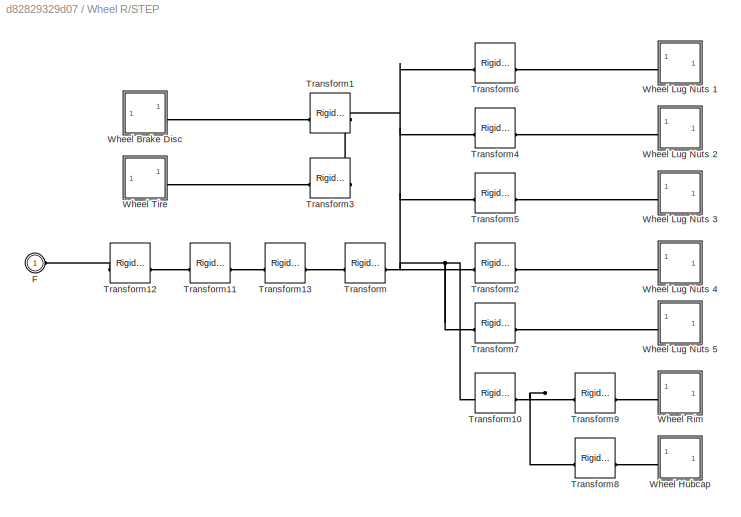
BLOCK [SubSystem] Wheel R/STEP
BLOCK [PMIOPort] Wheel R/STEP/F
  Side = Left
BLOCK [Reference] Wheel R/STEP/Transform  REF=sm_lib/Frames and
Transforms/Rigid
Transform
  SourceBlock = sm_lib/Frames and\nTransforms/Rigid\nTransform
  SourceType = Rigid\nTransform
BLOCK [Reference] Wheel R/STEP/Transform1  REF=sm_lib/Frames and
Transforms/Rigid
Transform
  Commented = on
  SourceBlock = sm_lib/Frames and\nTransforms/Rigid\nTransform
  SourceType = Rigid\nTransform
BLOCK [Reference] Wheel R/STEP/Transform10  REF=sm_lib/Frames and
Transforms/Rigid
Transform
  SourceBlock = sm_lib/Frames and\nTransforms/Rigid\nTransform
  SourceType = Rigid\nTransform
BLOCK [Reference] Wheel R/STEP/Transform11  REF=sm_lib/Frames and
Transforms/Rigid
Transform
  SourceBlock = sm_lib/Frames and\nTransforms/Rigid\nTransform
  SourceType = Rigid\nTransform
BLOCK [Reference] Wheel R/STEP/Transform12  REF=sm_lib/Frames and
Transforms/Rigid
Transform
  SourceBlock = sm_lib/Frames and\nTransforms/Rigid\nTransform
  SourceType = Rigid\nTransform
BLOCK [Reference] Wheel R/STEP/Transform13  REF=sm_lib/Frames and
Transforms/Rigid
Transform
  SourceBlock = sm_lib/Frames and\nTransforms/Rigid\nTransform
  SourceType = Rigid\nTransform
BLOCK [Reference] Wheel R/STEP/Transform2  REF=sm_lib/Frames and
Transforms/Rigid
Transform
  SourceBlock = sm_lib/Frames and\nTransforms/Rigid\nTransform
  SourceType = Rigid\nTransform
BLOCK [Reference] Wheel R/STEP/Transform3  REF=sm_lib/Frames and
Transforms/Rigid
Transform
  Commented = on
  SourceBlock = sm_lib/Frames and\nTransforms/Rigid\nTransform
  SourceType = Rigid\nTransform
BLOCK [Reference] Wheel R/STEP/Transform4  REF=sm_lib/Frames and
Transforms/Rigid
Transform
  SourceBlock = sm_lib/Frames and\nTransforms/Rigid\nTransform
  SourceType = Rigid\nTransform
BLOCK [Reference] Wheel R/STEP/Transform5  REF=sm_lib/Frames and
Transforms/Rigid
Transform
  SourceBlock = sm_lib/Frames and\nTransforms/Rigid\nTransform
  SourceType = Rigid\nTransform
BLOCK [Reference] Wheel R/STEP/Transform6  REF=sm_lib/Frames and
Transforms/Rigid
Transform
  SourceBlock = sm_lib/Frames and\nTransforms/Rigid\nTransform
  SourceType = Rigid\nTransform
BLOCK [Reference] Wheel R/STEP/Transform7  REF=sm_lib/Frames and
Transforms/Rigid
Transform
  SourceBlock = sm_lib/Frames and\nTransforms/Rigid\nTransform
  SourceType = Rigid\nTransform
BLOCK [Reference] Wheel R/STEP/Transform8  REF=sm_lib/Frames and
Transforms/Rigid
Transform
  SourceBlock = sm_lib/Frames and\nTransforms/Rigid\nTransform
  SourceType = Rigid\nTransform
BLOCK [Reference] Wheel R/STEP/Transform9  REF=sm_lib/Frames and
Transforms/Rigid
Transform
  SourceBlock = sm_lib/Frames and\nTransforms/Rigid\nTransform
  SourceType = Rigid\nTransform
BLOCK [SubSystem] Wheel R/STEP/Wheel Brake Disc
  Commented = on
BLOCK [PMIOPort] Wheel R/STEP/Wheel Brake Disc/F
  Side = Left
BLOCK [Reference] Wheel R/STEP/Wheel Brake Disc/ReferenceFrame  REF=sm_lib/Frames and
Transforms/Reference
Frame
  SourceBlock = sm_lib/Frames and\nTransforms/Reference\nFrame
  SourceType = Reference\nFrame
BLOCK [Reference] Wheel R/STEP/Wheel Brake Disc/Solid  REF=sm_lib/Body Elements/File Solid
  SourceBlock = sm_lib/Body Elements/File Solid
  SourceType = File Solid
BLOCK [SubSystem] Wheel R/STEP/Wheel Hubcap
BLOCK [PMIOPort] Wheel R/STEP/Wheel Hubcap/F
  Side = Left
BLOCK [Reference] Wheel R/STEP/Wheel Hubcap/ReferenceFrame  REF=sm_lib/Frames and
Transforms/Reference
Frame
  SourceBlock = sm_lib/Frames and\nTransforms/Reference\nFrame
  SourceType = Reference\nFrame
BLOCK [Reference] Wheel R/STEP/Wheel Hubcap/Solid  REF=sm_lib/Body Elements/File Solid
  SourceBlock = sm_lib/Body Elements/File Solid
  SourceType = File Solid
BLOCK [SubSystem] Wheel R/STEP/Wheel Lug Nuts 1
BLOCK [PMIOPort] Wheel R/STEP/Wheel Lug Nuts 1/F
  Side = Left
BLOCK [Reference] Wheel R/STEP/Wheel Lug Nuts 1/ReferenceFrame  REF=sm_lib/Frames and
Transforms/Reference
Frame
  SourceBlock = sm_lib/Frames and\nTransforms/Reference\nFrame
  SourceType = Reference\nFrame
BLOCK [Reference] Wheel R/STEP/Wheel Lug Nuts 1/Solid  REF=sm_lib/Body Elements/File Solid
  SourceBlock = sm_lib/Body Elements/File Solid
  SourceType = File Solid
BLOCK [SubSystem] Wheel R/STEP/Wheel Lug Nuts 2
BLOCK [PMIOPort] Wheel R/STEP/Wheel Lug Nuts 2/F
  Side = Left
BLOCK [Reference] Wheel R/STEP/Wheel Lug Nuts 2/ReferenceFrame  REF=sm_lib/Frames and
Transforms/Reference
Frame
  SourceBlock = sm_lib/Frames and\nTransforms/Reference\nFrame
  SourceType = Reference\nFrame
BLOCK [Reference] Wheel R/STEP/Wheel Lug Nuts 2/Solid  REF=sm_lib/Body Elements/File Solid
  SourceBlock = sm_lib/Body Elements/File Solid
  SourceType = File Solid
BLOCK [SubSystem] Wheel R/STEP/Wheel Lug Nuts 3
BLOCK [PMIOPort] Wheel R/STEP/Wheel Lug Nuts 3/F
  Side = Left
BLOCK [Reference] Wheel R/STEP/Wheel Lug Nuts 3/ReferenceFrame  REF=sm_lib/Frames and
Transforms/Reference
Frame
  SourceBlock = sm_lib/Frames and\nTransforms/Reference\nFrame
  SourceType = Reference\nFrame
BLOCK [Reference] Wheel R/STEP/Wheel Lug Nuts 3/Solid  REF=sm_lib/Body Elements/File Solid
  SourceBlock = sm_lib/Body Elements/File Solid
  SourceType = File Solid
BLOCK [SubSystem] Wheel R/STEP/Wheel Lug Nuts 4
BLOCK [PMIOPort] Wheel R/STEP/Wheel Lug Nuts 4/F
  Side = Left
BLOCK [Reference] Wheel R/STEP/Wheel Lug Nuts 4/ReferenceFrame  REF=sm_lib/Frames and
Transforms/Reference
Frame
  SourceBlock = sm_lib/Frames and\nTransforms/Reference\nFrame
  SourceType = Reference\nFrame
BLOCK [Reference] Wheel R/STEP/Wheel Lug Nuts 4/Solid  REF=sm_lib/Body Elements/File Solid
  SourceBlock = sm_lib/Body Elements/File Solid
  SourceType = File Solid
BLOCK [SubSystem] Wheel R/STEP/Wheel Lug Nuts 5
BLOCK [PMIOPort] Wheel R/STEP/Wheel Lug Nuts 5/F
  Side = Left
BLOCK [Reference] Wheel R/STEP/Wheel Lug Nuts 5/ReferenceFrame  REF=sm_lib/Frames and
Transforms/Reference
Frame
  SourceBlock = sm_lib/Frames and\nTransforms/Reference\nFrame
  SourceType = Reference\nFrame
BLOCK [Reference] Wheel R/STEP/Wheel Lug Nuts 5/Solid  REF=sm_lib/Body Elements/File Solid
  SourceBlock = sm_lib/Body Elements/File Solid
  SourceType = File Solid
BLOCK [SubSystem] Wheel R/STEP/Wheel Rim
BLOCK [PMIOPort] Wheel R/STEP/Wheel Rim/F
  Side = Left
BLOCK [Reference] Wheel R/STEP/Wheel Rim/ReferenceFrame  REF=sm_lib/Frames and
Transforms/Reference
Frame
  SourceBlock = sm_lib/Frames and\nTransforms/Reference\nFrame
  SourceType = Reference\nFrame
BLOCK [Reference] Wheel R/STEP/Wheel Rim/Solid  REF=sm_lib/Body Elements/File Solid
  SourceBlock = sm_lib/Body Elements/File Solid
  SourceType = File Solid
BLOCK [SubSystem] Wheel R/STEP/Wheel Tire
  Commented = on
BLOCK [PMIOPort] Wheel R/STEP/Wheel Tire/F
  Side = Left
BLOCK [Reference] Wheel R/STEP/Wheel Tire/ReferenceFrame  REF=sm_lib/Frames and
Transforms/Reference
Frame
  SourceBlock = sm_lib/Frames and\nTransforms/Reference\nFrame
  SourceType = Reference\nFrame
BLOCK [Reference] Wheel R/STEP/Wheel Tire/Solid  REF=sm_lib/Body Elements/File Solid
  SourceBlock = sm_lib/Body Elements/File Solid
  SourceType = File Solid
BLOCK [SubSystem] Wheel R/STL
BLOCK [PMIOPort] Wheel R/STL/Conn1
  Side = Left
BLOCK [Reference] Wheel R/STL/Rigid Transform3  REF=sm_lib/Frames and
Transforms/Rigid
Transform
  SourceBlock = sm_lib/Frames and\nTransforms/Rigid\nTransform
  SourceType = Rigid\nTransform
BLOCK [Reference] Wheel R/STL/Sedan_Hamba_wheel3_brake_disc  REF=sm_lib/Body Elements/File Solid
  SourceBlock = sm_lib/Body Elements/File Solid
  SourceType = File Solid
BLOCK [Reference] Wheel R/STL/Sedan_Hamba_wheel3_tire  REF=sm_lib/Body Elements/File Solid
  SourceBlock = sm_lib/Body Elements/File Solid
  SourceType = File Solid
BLOCK [Reference] Wheel R/STL/Transform FA FL1  REF=sm_lib/Frames and
Transforms/Rigid
Transform
  SourceBlock = sm_lib/Frames and\nTransforms/Rigid\nTransform
  SourceType = Rigid\nTransform
BLOCK [Reference] Wheel R/Transform Left Right  REF=sm_lib/Frames and
Transforms/Rigid
Transform
  SourceBlock = sm_lib/Frames and\nTransforms/Rigid\nTransform
  SourceType = Rigid\nTransform
ANNOTATION (root): Component of Simscape Vehicle Templates Library <copyright redacted>
PLINE Body/Body/Body:RConn1 -- Body/Body/STL:RConn1
PNET net1: Body/Body:RConn1 -- Body/Exterior:LConn2 -- Body/Interior:LConn2 -- Body/Transform FA to STL Ref:RConn1
PLINE Body/Exterior/Door Handles:RConn1 -- Body/Exterior/Transform2:RConn1
PLINE Body/Exterior/Exhaust:RConn1 -- Body/Exterior/Transform:RConn1
PNET net2: Body/Exterior/FA:RConn1 -- Body/Exterior/Hitch:LConn1 -- Body/Exterior/License Plate:RConn1 -- Body/Exterior/Rigid Transform1:LConn1
PLINE Body/Exterior/Grill:RConn1 -- Body/Exterior/Transform3:RConn1
PNET net3: Body/Exterior/Headlight L:RConn1 -- Body/Exterior/Headlight R:RConn1 -- Body/Exterior/Hitch:LConn2 -- Body/Exterior/STL:RConn1 -- Body/Exterior/Tail Lights:RConn1 -- Body/Exterior/Wipers:RConn1
PNET net4: Body/Exterior/Hitch/Hitch Tow Ball Nut/F:RConn1 -- Body/Exterior/Hitch/Hitch Tow Ball Nut/ReferenceFrame:RConn1 -- Body/Exterior/Hitch/Hitch Tow Ball Nut/Solid:RConn1
PLINE Body/Exterior/Hitch/Hitch Tow Ball Nut:LConn1 -- Body/Exterior/Hitch/Transform4:RConn1
PLINE Body/Exterior/Hitch/Rigid Transform1:LConn1 -- Body/Exterior/Hitch/Rigid Transform5:LConn1
PLINE Body/Exterior/Hitch/Rigid Transform1:RConn1 -- Body/Exterior/Hitch/Transform10:LConn1
PLINE Body/Exterior/Hitch/Rigid Transform5:RConn1 -- Body/Exterior/Hitch/Transform9:LConn1
PLINE Body/Exterior/Hitch/Rigid Transform:LConn1 -- Body/Exterior/Hitch/STEP:RConn1
PLINE Body/Exterior/Hitch/Rigid Transform:RConn1 -- Body/Exterior/Hitch/Transform13:LConn1
PNET net5: Body/Exterior/Hitch/STL:RConn1 -- Body/Exterior/Hitch/Sedan_Hamba_hitch_bolt:RConn1 -- Body/Exterior/Hitch/Sedan_Hamba_hitch_mount_1:RConn1 -- Body/Exterior/Hitch/Sedan_Hamba_hitch_mount_2:RConn1 -- Body/Exterior/Hitch/Sedan_Hamba_hitch_mount_nut:RConn1 -- Body/Exterior/Hitch/Sedan_Hamba_hitch_throat:RConn1 -- Body/Exterior/Hitch/Sedan_Hamba_hitch_tongue:RConn1 -- Body/Exterior/Hitch/Sedan_Hamba_hitch_tow_ball:RConn1
PLINE Body/Exterior/Hitch/Transform10:RConn1 -- Body/Exterior/Hitch/Transform13:RConn1
PLINE Body/Exterior/Hitch/Transform4:LConn1 -- Body/Exterior/Hitch/Transform:LConn1
PLINE Body/Exterior/Hitch/Transform9:RConn1 -- Body/Exterior/Hitch/Transform:RConn1
PLINE Body/Exterior/License Plate/FA:RConn1 -- Body/Exterior/License Plate/Transform Plate Location:LConn1
PNET net6: Body/Exterior/License Plate/Letter Color:RConn1 -- Body/Exterior/License Plate/Transform Axis:LConn1 -- Body/Exterior/License Plate/Transform CAD Ref Frame:LConn1
PLINE Body/Exterior/License Plate/License Plate:RConn1 -- Body/Exterior/License Plate/Transform CAD Ref Frame:RConn1
PLINE Body/Exterior/License Plate/Transform Axis:RConn1 -- Body/Exterior/License Plate/Transform Plate Location:RConn1
PLINE Body/Exterior/Rigid Transform1:RConn1 -- Body/Exterior/Transform1:LConn1
PNET net7: Body/Exterior/Transform1:RConn1 -- Body/Exterior/Transform2:LConn1 -- Body/Exterior/Transform3:LConn1 -- Body/Exterior/Transform:LConn1
PNET net8: Body/Exterior:LConn1 -- Body/FA:RConn1 -- Body/Interior:LConn1 -- Body/Transform FA to STL Ref:LConn1
PLINE Body/Interior/FA:RConn1 -- Body/Interior/Rigid Transform:LConn1
PLINE Body/Interior/Gearshift/F:RConn1 -- Body/Interior/Gearshift/Transform11:LConn1
PNET net9: Body/Interior/Gearshift/ReferenceFrame:RConn1 -- Body/Interior/Gearshift/Solid:RConn1 -- Body/Interior/Gearshift/Transform11:RConn1
PLINE Body/Interior/Gearshift:LConn1 -- Body/Interior/Transform13:RConn1
PNET net10: Body/Interior/Rearview Mirror:RConn1 -- Body/Interior/STL:RConn1 -- Body/Interior/Seats:RConn1 -- Body/Interior/Steering Column:RConn1
PLINE Body/Interior/Rigid Transform:RConn1 -- Body/Interior/Transform13:LConn1
PLINE Body/Interior/Seats/File Solid:RConn1 -- Body/Interior/Seats/Transform Seat Str Align:RConn1
PLINE Body/Interior/Seats/STL Ref:RConn1 -- Body/Interior/Seats/Transform Align Dash:LConn1
PLINE Body/Interior/Seats/Transform Align Dash:RConn1 -- Body/Interior/Seats/Transform Seat Str Align:LConn1
PLINE Brake L/B:RConn1 -- Brake L/Transform FA FL1:RConn1
PLINE Brake L/Rigid Transform3:LConn1 -- Brake L/Transform FA FL1:LConn1
PNET net11: Brake L/Rigid Transform3:RConn1 -- Brake L/Sedan_Hamba_brake3_caliper:RConn1 -- Brake L/Sedan_Hamba_brake3_caliper_mount:RConn1
PLINE Brake R/B:RConn1 -- Brake R/Rigid Transform:RConn1
PLINE Brake R/Rigid Transform1:LConn1 -- Brake R/Transform FA FR1:LConn1
PLINE Brake R/Rigid Transform1:RConn1 -- Brake R/Sedan_Hamba_brake2_caliper_mount:RConn1
PLINE Brake R/Rigid Transform2:LConn1 -- Brake R/Transform FA FR:LConn1
PLINE Brake R/Rigid Transform2:RConn1 -- Brake R/Sedan_Hamba_brake2_caliper:RConn1
PNET net12: Brake R/Rigid Transform:LConn1 -- Brake R/Transform FA FR1:RConn1 -- Brake R/Transform FA FR:RConn1
PLINE Driver/Arm L/Arm Lower L/Elbow:RConn1 -- Driver/Arm L/Arm Lower L/Transform Elbow:RConn1
PNET net13: Driver/Arm L/Arm Lower L/ReferenceFrame:RConn1 -- Driver/Arm L/Arm Lower L/Solid:RConn1 -- Driver/Arm L/Arm Lower L/Transform1:LConn1 -- Driver/Arm L/Arm Lower L/Transform:LConn1
PLINE Driver/Arm L/Arm Lower L/Transform Elbow:LConn1 -- Driver/Arm L/Arm Lower L/Transform:RConn1
PLINE Driver/Arm L/Arm Lower L/Transform Transform Wrist:LConn1 -- Driver/Arm L/Arm Lower L/Transform1:RConn1
PLINE Driver/Arm L/Arm Lower L/Transform Transform Wrist:RConn1 -- Driver/Arm L/Arm Lower L/Wrist:RConn1
PLINE Driver/Arm L/Arm Lower L:LConn1 -- Driver/Arm L/Revolute ElbowL:RConn1
PLINE Driver/Arm L/Arm Lower L:RConn1 -- Driver/Arm L/Universal WristL:LConn1
PLINE Driver/Arm L/Arm Upper L/Elbow:RConn1 -- Driver/Arm L/Arm Upper L/Transform Elbow:RConn1
PNET net14: Driver/Arm L/Arm Upper L/ReferenceFrame:RConn1 -- Driver/Arm L/Arm Upper L/Solid:RConn1 -- Driver/Arm L/Arm Upper L/Transform1:LConn1 -- Driver/Arm L/Arm Upper L/Transform:LConn1
PLINE Driver/Arm L/Arm Upper L/Shoulder:RConn1 -- Driver/Arm L/Arm Upper L/Transform Shoulder:RConn1
PLINE Driver/Arm L/Arm Upper L/Transform Elbow:LConn1 -- Driver/Arm L/Arm Upper L/Transform1:RConn1
PLINE Driver/Arm L/Arm Upper L/Transform Shoulder:LConn1 -- Driver/Arm L/Arm Upper L/Transform:RConn1
PLINE Driver/Arm L/Arm Upper L:LConn1 -- Driver/Arm L/Spherical ShoulderL:RConn1
PLINE Driver/Arm L/Arm Upper L:RConn1 -- Driver/Arm L/Revolute ElbowL:LConn1
PLINE Driver/Arm L/Grip:RConn1 -- Driver/Arm L/Hand L:RConn1
PLINE Driver/Arm L/Hand L/Grip:RConn1 -- Driver/Arm L/Hand L/Transform1:RConn1
PNET net15: Driver/Arm L/Hand L/ReferenceFrame:RConn1 -- Driver/Arm L/Hand L/Solid:RConn1 -- Driver/Arm L/Hand L/Transform1:LConn1 -- Driver/Arm L/Hand L/Transform:LConn1
PLINE Driver/Arm L/Hand L/Transform Wrist:LConn1 -- Driver/Arm L/Hand L/Transform:RConn1
PLINE Driver/Arm L/Hand L/Transform Wrist:RConn1 -- Driver/Arm L/Hand L/Wrist:RConn1
PLINE Driver/Arm L/Hand L:LConn1 -- Driver/Arm L/Universal WristL:RConn1
PLINE Driver/Arm L/Sh:RConn1 -- Driver/Arm L/Spherical ShoulderL:LConn1
PLINE Driver/Arm L:LConn1 -- Driver/Torso:RConn1
PLINE Driver/Arm L:RConn1 -- Driver/HandL:RConn1
PLINE Driver/Arm R/Arm Lower R/Elbow:RConn1 -- Driver/Arm R/Arm Lower R/Transform Elbow:RConn1
PNET net16: Driver/Arm R/Arm Lower R/ReferenceFrame:RConn1 -- Driver/Arm R/Arm Lower R/Solid:RConn1 -- Driver/Arm R/Arm Lower R/Transform1:LConn1 -- Driver/Arm R/Arm Lower R/Transform:LConn1
PLINE Driver/Arm R/Arm Lower R/Transform Elbow:LConn1 -- Driver/Arm R/Arm Lower R/Transform1:RConn1
PLINE Driver/Arm R/Arm Lower R/Transform Wrist:LConn1 -- Driver/Arm R/Arm Lower R/Transform:RConn1
PLINE Driver/Arm R/Arm Lower R/Transform Wrist:RConn1 -- Driver/Arm R/Arm Lower R/Wrist:RConn1
PLINE Driver/Arm R/Arm Lower R:LConn1 -- Driver/Arm R/Revolute ElbowR:RConn1
PLINE Driver/Arm R/Arm Lower R:RConn1 -- Driver/Arm R/Universal WristR:LConn1
PLINE Driver/Arm R/Arm Upper R/Elbow:RConn1 -- Driver/Arm R/Arm Upper R/Transform Elbow:RConn1
PNET net17: Driver/Arm R/Arm Upper R/ReferenceFrame:RConn1 -- Driver/Arm R/Arm Upper R/Solid:RConn1 -- Driver/Arm R/Arm Upper R/Transform1:LConn1 -- Driver/Arm R/Arm Upper R/Transform:LConn1
PLINE Driver/Arm R/Arm Upper R/Shoulder:RConn1 -- Driver/Arm R/Arm Upper R/Transform Shoulder:RConn1
PLINE Driver/Arm R/Arm Upper R/Transform Elbow:LConn1 -- Driver/Arm R/Arm Upper R/Transform:RConn1
PLINE Driver/Arm R/Arm Upper R/Transform Shoulder:LConn1 -- Driver/Arm R/Arm Upper R/Transform1:RConn1
PLINE Driver/Arm R/Arm Upper R:LConn1 -- Driver/Arm R/Spherical ShoulderR:RConn1
PLINE Driver/Arm R/Arm Upper R:RConn1 -- Driver/Arm R/Revolute ElbowR:LConn1
PLINE Driver/Arm R/Grip:RConn1 -- Driver/Arm R/Hand R:RConn1
PLINE Driver/Arm R/Hand R/Grip:RConn1 -- Driver/Arm R/Hand R/Transform Grip:RConn1
PNET net18: Driver/Arm R/Hand R/ReferenceFrame:RConn1 -- Driver/Arm R/Hand R/Solid:RConn1 -- Driver/Arm R/Hand R/Transform1:LConn1 -- Driver/Arm R/Hand R/Transform:LConn1
PLINE Driver/Arm R/Hand R/Transform Grip:LConn1 -- Driver/Arm R/Hand R/Transform1:RConn1
PLINE Driver/Arm R/Hand R/Transform Wrist:LConn1 -- Driver/Arm R/Hand R/Transform:RConn1
PLINE Driver/Arm R/Hand R/Transform Wrist:RConn1 -- Driver/Arm R/Hand R/Wrist:RConn1
PLINE Driver/Arm R/Hand R:LConn1 -- Driver/Arm R/Universal WristR:RConn1
PLINE Driver/Arm R/Sh:RConn1 -- Driver/Arm R/Spherical ShoulderR:LConn1
PLINE Driver/Arm R:LConn1 -- Driver/Torso:RConn3
PLINE Driver/Arm R:RConn1 -- Driver/HandR:RConn1
PLINE Driver/Head/F:RConn1 -- Driver/Head/Transform Neck:RConn1
PNET net19: Driver/Head/ReferenceFrame:RConn1 -- Driver/Head/Solid:RConn1 -- Driver/Head/Transform:LConn1
PLINE Driver/Head/Transform Neck:LConn1 -- Driver/Head/Transform:RConn1
PLINE Driver/Head:LConn1 -- Driver/Revolute Neck:RConn1
PLINE Driver/Leg L/Conn1:RConn1 -- Driver/Leg L/Leg Upper L:LConn1
PLINE Driver/Leg L/Foot L/F1:RConn1 -- Driver/Leg L/Foot L/Transform1:RConn1
PLINE Driver/Leg L/Foot L/F:RConn1 -- Driver/Leg L/Foot L/Transform:RConn1
PNET net20: Driver/Leg L/Foot L/ReferenceFrame:RConn1 -- Driver/Leg L/Foot L/Solid:RConn1 -- Driver/Leg L/Foot L/Transform1:LConn1 -- Driver/Leg L/Foot L/Transform:LConn1
PLINE Driver/Leg L/Foot L:LConn1 -- Driver/Leg L/Toe L:LConn1
PLINE Driver/Leg L/Foot L:LConn2 -- Driver/Leg L/Leg Lower L:LConn1
PLINE Driver/Leg L/Leg Lower L/F1:RConn1 -- Driver/Leg L/Leg Lower L/Transform1:RConn1
PLINE Driver/Leg L/Leg Lower L/F:RConn1 -- Driver/Leg L/Leg Lower L/Transform:RConn1
PNET net21: Driver/Leg L/Leg Lower L/ReferenceFrame:RConn1 -- Driver/Leg L/Leg Lower L/Solid:RConn1 -- Driver/Leg L/Leg Lower L/Transform1:LConn1 -- Driver/Leg L/Leg Lower L/Transform:LConn1
PLINE Driver/Leg L/Leg Lower L:LConn2 -- Driver/Leg L/Leg Upper L:LConn2
PLINE Driver/Leg L/Leg Upper L/F1:RConn1 -- Driver/Leg L/Leg Upper L/Transform1:RConn1
PLINE Driver/Leg L/Leg Upper L/F:RConn1 -- Driver/Leg L/Leg Upper L/Transform:RConn1
PNET net22: Driver/Leg L/Leg Upper L/ReferenceFrame:RConn1 -- Driver/Leg L/Leg Upper L/Solid:RConn1 -- Driver/Leg L/Leg Upper L/Transform1:LConn1 -- Driver/Leg L/Leg Upper L/Transform:LConn1
PLINE Driver/Leg L/Toe L/F:RConn1 -- Driver/Leg L/Toe L/Transform:RConn1
PNET net23: Driver/Leg L/Toe L/ReferenceFrame:RConn1 -- Driver/Leg L/Toe L/Solid:RConn1 -- Driver/Leg L/Toe L/Transform:LConn1
PLINE Driver/Leg L:LConn1 -- Driver/Pelvis:RConn1
PLINE Driver/Leg R/Conn1:RConn1 -- Driver/Leg R/Leg Upper R:LConn2
PLINE Driver/Leg R/Foot R/F1:RConn1 -- Driver/Leg R/Foot R/Transform1:RConn1
PLINE Driver/Leg R/Foot R/F:RConn1 -- Driver/Leg R/Foot R/Transform:RConn1
PNET net24: Driver/Leg R/Foot R/ReferenceFrame:RConn1 -- Driver/Leg R/Foot R/Solid:RConn1 -- Driver/Leg R/Foot R/Transform1:LConn1 -- Driver/Leg R/Foot R/Transform:LConn1
PLINE Driver/Leg R/Foot R:LConn1 -- Driver/Leg R/Toe R:LConn1
PLINE Driver/Leg R/Foot R:LConn2 -- Driver/Leg R/Leg Lower R:LConn1
PLINE Driver/Leg R/Leg Lower R/F1:RConn1 -- Driver/Leg R/Leg Lower R/Transform1:RConn1
PLINE Driver/Leg R/Leg Lower R/F:RConn1 -- Driver/Leg R/Leg Lower R/Transform:RConn1
PNET net25: Driver/Leg R/Leg Lower R/ReferenceFrame:RConn1 -- Driver/Leg R/Leg Lower R/Solid:RConn1 -- Driver/Leg R/Leg Lower R/Transform1:LConn1 -- Driver/Leg R/Leg Lower R/Transform:LConn1
PLINE Driver/Leg R/Leg Lower R:LConn2 -- Driver/Leg R/Leg Upper R:LConn1
PLINE Driver/Leg R/Leg Upper R/F1:RConn1 -- Driver/Leg R/Leg Upper R/Transform1:RConn1
PLINE Driver/Leg R/Leg Upper R/F:RConn1 -- Driver/Leg R/Leg Upper R/Transform:RConn1
PNET net26: Driver/Leg R/Leg Upper R/ReferenceFrame:RConn1 -- Driver/Leg R/Leg Upper R/Solid:RConn1 -- Driver/Leg R/Leg Upper R/Transform1:LConn1 -- Driver/Leg R/Leg Upper R/Transform:LConn1
PLINE Driver/Leg R/Toe R/F:RConn1 -- Driver/Leg R/Toe R/Transform:RConn1
PNET net27: Driver/Leg R/Toe R/ReferenceFrame:RConn1 -- Driver/Leg R/Toe R/Solid:RConn1 -- Driver/Leg R/Toe R/Transform:LConn1
PLINE Driver/Leg R:LConn1 -- Driver/Pelvis:RConn2
PLINE Driver/Pelvis/LegL:RConn1 -- Driver/Pelvis/Transform3:RConn1
PLINE Driver/Pelvis/LegR:RConn1 -- Driver/Pelvis/Transform:RConn1
PNET net28: Driver/Pelvis/ReferenceFrame:RConn1 -- Driver/Pelvis/Solid:RConn1 -- Driver/Pelvis/Transform2:LConn1 -- Driver/Pelvis/Transform3:LConn1 -- Driver/Pelvis/Transform:LConn1
PLINE Driver/Pelvis/Torso:RConn1 -- Driver/Pelvis/Transform2:RConn1
PNET net29: Driver/Pelvis:LConn1 -- Driver/Transform W to Driver:LConn1 -- Driver/Twist:LConn1
PLINE Driver/Ref:RConn1 -- Driver/Transform W to Driver:RConn1
PLINE Driver/Revolute Neck:LConn1 -- Driver/Torso:RConn2
PLINE Driver/Torso/ArmL:RConn1 -- Driver/Torso/Transform ShoulderL:RConn1
PLINE Driver/Torso/ArmR:RConn1 -- Driver/Torso/Transform ShoulderR:RConn1
PLINE Driver/Torso/Head:RConn1 -- Driver/Torso/Transform Neck:RConn1
PLINE Driver/Torso/Pelvis:RConn1 -- Driver/Torso/Transform1:RConn1
PNET net30: Driver/Torso/ReferenceFrame:RConn1 -- Driver/Torso/Solid:RConn1 -- Driver/Torso/Transform1:LConn1 -- Driver/Torso/Transform2:LConn1 -- Driver/Torso/Transform3:LConn1 -- Driver/Torso/Transform:LConn1
PLINE Driver/Torso/Transform Neck:LConn1 -- Driver/Torso/Transform2:RConn1
PLINE Driver/Torso/Transform ShoulderL:LConn1 -- Driver/Torso/Transform:RConn1
PLINE Driver/Torso/Transform ShoulderR:LConn1 -- Driver/Torso/Transform3:RConn1
PLINE Driver/Torso:LConn1 -- Driver/Twist:RConn1
PLINE Driver/Twist/B:RConn1 -- Driver/Twist/Transform Axis Orientation B:LConn1
PNET net31: Driver/Twist/Revolute Joint:LConn1 -- Driver/Twist/Revolute Joint:RConn1 -- Driver/Twist/Transform Axis Location B:RConn1 -- Driver/Twist/Transform Axis Location F:RConn1
PLINE Driver/Twist/T:RConn1 -- Driver/Twist/Transform Axis Orientation F:LConn1
PLINE Driver/Twist/Transform Axis Location B:LConn1 -- Driver/Twist/Transform Axis Orientation B:RConn1
PLINE Driver/Twist/Transform Axis Location F:LConn1 -- Driver/Twist/Transform Axis Orientation F:RConn1
PNET net32: Seated Passenger Sedan/Arm Lower L/F:RConn1 -- Seated Passenger Sedan/Arm Lower L/ReferenceFrame:RConn1 -- Seated Passenger Sedan/Arm Lower L/Solid:RConn1
PLINE Seated Passenger Sedan/Arm Lower L:LConn1 -- Seated Passenger Sedan/Transform4:RConn1
PNET net33: Seated Passenger Sedan/Arm Lower R/F:RConn1 -- Seated Passenger Sedan/Arm Lower R/ReferenceFrame:RConn1 -- Seated Passenger Sedan/Arm Lower R/Solid:RConn1
PLINE Seated Passenger Sedan/Arm Lower R:LConn1 -- Seated Passenger Sedan/Transform5:RConn1
PNET net34: Seated Passenger Sedan/Arm Upper L/F:RConn1 -- Seated Passenger Sedan/Arm Upper L/ReferenceFrame:RConn1 -- Seated Passenger Sedan/Arm Upper L/Solid:RConn1
PLINE Seated Passenger Sedan/Arm Upper L:LConn1 -- Seated Passenger Sedan/Transform1:RConn1
PNET net35: Seated Passenger Sedan/Arm Upper R/F:RConn1 -- Seated Passenger Sedan/Arm Upper R/ReferenceFrame:RConn1 -- Seated Passenger Sedan/Arm Upper R/Solid:RConn1
PLINE Seated Passenger Sedan/Arm Upper R:LConn1 -- Seated Passenger Sedan/Transform2:RConn1
PNET net36: Seated Passenger Sedan/Foot L/F:RConn1 -- Seated Passenger Sedan/Foot L/ReferenceFrame:RConn1 -- Seated Passenger Sedan/Foot L/Solid:RConn1
PLINE Seated Passenger Sedan/Foot L:LConn1 -- Seated Passenger Sedan/Transform13:RConn1
PNET net37: Seated Passenger Sedan/Foot R/F:RConn1 -- Seated Passenger Sedan/Foot R/ReferenceFrame:RConn1 -- Seated Passenger Sedan/Foot R/Solid:RConn1
PLINE Seated Passenger Sedan/Foot R:LConn1 -- Seated Passenger Sedan/Transform9:RConn1
PNET net38: Seated Passenger Sedan/Hand L/F:RConn1 -- Seated Passenger Sedan/Hand L/ReferenceFrame:RConn1 -- Seated Passenger Sedan/Hand L/Solid:RConn1
PLINE Seated Passenger Sedan/Hand L:LConn1 -- Seated Passenger Sedan/Transform:RConn1
PNET net39: Seated Passenger Sedan/Hand R/F:RConn1 -- Seated Passenger Sedan/Hand R/ReferenceFrame:RConn1 -- Seated Passenger Sedan/Hand R/Solid:RConn1
PLINE Seated Passenger Sedan/Hand R:LConn1 -- Seated Passenger Sedan/Transform3:RConn1
PNET net40: Seated Passenger Sedan/Head/F:RConn1 -- Seated Passenger Sedan/Head/ReferenceFrame:RConn1 -- Seated Passenger Sedan/Head/Solid:RConn1
PLINE Seated Passenger Sedan/Head:LConn1 -- Seated Passenger Sedan/Transform11:RConn1
PNET net41: Seated Passenger Sedan/Leg Lower L/F:RConn1 -- Seated Passenger Sedan/Leg Lower L/ReferenceFrame:RConn1 -- Seated Passenger Sedan/Leg Lower L/Solid:RConn1
PLINE Seated Passenger Sedan/Leg Lower L:LConn1 -- Seated Passenger Sedan/Transform14:RConn1
PNET net42: Seated Passenger Sedan/Leg Lower R/F:RConn1 -- Seated Passenger Sedan/Leg Lower R/ReferenceFrame:RConn1 -- Seated Passenger Sedan/Leg Lower R/Solid:RConn1
PLINE Seated Passenger Sedan/Leg Lower R:LConn1 -- Seated Passenger Sedan/Transform6:RConn1
PNET net43: Seated Passenger Sedan/Leg Upper L/F:RConn1 -- Seated Passenger Sedan/Leg Upper L/ReferenceFrame:RConn1 -- Seated Passenger Sedan/Leg Upper L/Solid:RConn1
PLINE Seated Passenger Sedan/Leg Upper L:LConn1 -- Seated Passenger Sedan/Transform15:RConn1
PNET net44: Seated Passenger Sedan/Leg Upper R/F:RConn1 -- Seated Passenger Sedan/Leg Upper R/ReferenceFrame:RConn1 -- Seated Passenger Sedan/Leg Upper R/Solid:RConn1
PLINE Seated Passenger Sedan/Leg Upper R:LConn1 -- Seated Passenger Sedan/Transform12:RConn1
PLINE Seated Passenger Sedan/P:RConn1 -- Seated Passenger Sedan/Rigid Transform:RConn1
PNET net45: Seated Passenger Sedan/Pelvis/F:RConn1 -- Seated Passenger Sedan/Pelvis/ReferenceFrame:RConn1 -- Seated Passenger Sedan/Pelvis/Solid:RConn1
PNET net46: Seated Passenger Sedan/Pelvis:LConn1 -- Seated Passenger Sedan/Rigid Transform:LConn1 -- Seated Passenger Sedan/Transform16:RConn1
PNET net47: Seated Passenger Sedan/Toe L/F:RConn1 -- Seated Passenger Sedan/Toe L/ReferenceFrame:RConn1 -- Seated Passenger Sedan/Toe L/Solid:RConn1
PLINE Seated Passenger Sedan/Toe L:LConn1 -- Seated Passenger Sedan/Transform7:RConn1
PNET net48: Seated Passenger Sedan/Toe R/F:RConn1 -- Seated Passenger Sedan/Toe R/ReferenceFrame:RConn1 -- Seated Passenger Sedan/Toe R/Solid:RConn1
PLINE Seated Passenger Sedan/Toe R:LConn1 -- Seated Passenger Sedan/Transform8:RConn1
PNET net49: Seated Passenger Sedan/Torso/F:RConn1 -- Seated Passenger Sedan/Torso/ReferenceFrame:RConn1 -- Seated Passenger Sedan/Torso/Solid:RConn1
PLINE Seated Passenger Sedan/Torso:LConn1 -- Seated Passenger Sedan/Transform10:RConn1
PNET net50: Seated Passenger Sedan/Transform10:LConn1 -- Seated Passenger Sedan/Transform11:LConn1 -- Seated Passenger Sedan/Transform12:LConn1 -- Seated Passenger Sedan/Transform13:LConn1 -- Seated Passenger Sedan/Transform14:LConn1 -- Seated Passenger Sedan/Transform15:LConn1 -- Seated Passenger Sedan/Transform16:LConn1 -- Seated Passenger Sedan/Transform1:LConn1 -- Seated Passenger Sedan/Transform2:LConn1 -- Seated Passenger Sedan/Transform3:LConn1 -- Seated Passenger Sedan/Transform4:LConn1 -- Seated Passenger Sedan/Transform5:LConn1 -- Seated Passenger Sedan/Transform6:LConn1 -- Seated Passenger Sedan/Transform7:LConn1 -- Seated Passenger Sedan/Transform8:LConn1 -- Seated Passenger Sedan/Transform9:LConn1 -- Seated Passenger Sedan/Transform:LConn1
PLINE Steering Wheel/HandL:RConn1 -- Steering Wheel/Transform Align HandL:RConn1
PLINE Steering Wheel/HandR:RConn1 -- Steering Wheel/Transform HandR:RConn1
PLINE Steering Wheel/Reference Frame:RConn1 -- Steering Wheel/Solid:LConn2
PLINE Steering Wheel/Solid:LConn1 -- Steering Wheel/Transform Steer Ctr:LConn1
PNET net51: Steering Wheel/Solid:RConn1 -- Steering Wheel/Transform HandL:LConn1 -- Steering Wheel/Transform HandR:LConn1
PLINE Steering Wheel/SteerAxis:RConn1 -- Steering Wheel/Transform Steer Ctr:RConn1
PLINE Steering Wheel/Transform Align HandL:LConn1 -- Steering Wheel/Transform HandL:RConn1
PNET net52: Wheel L/B:RConn1 -- Wheel L/Inertia:RConn1 -- Wheel L/STEP:LConn1 -- Wheel L/STL:LConn1
PLINE Wheel L/STEP/F:RConn1 -- Wheel L/STEP/Transform12:RConn1
PNET net53: Wheel L/STEP/Transform10:LConn1 -- Wheel L/STEP/Transform2:LConn1 -- Wheel L/STEP/Transform4:LConn1 -- Wheel L/STEP/Transform5:LConn1 -- Wheel L/STEP/Transform6:LConn1 -- Wheel L/STEP/Transform7:LConn1 -- Wheel L/STEP/Transform:LConn1
PNET net54: Wheel L/STEP/Transform10:RConn1 -- Wheel L/STEP/Transform8:LConn1 -- Wheel L/STEP/Transform9:LConn1
PLINE Wheel L/STEP/Transform11:LConn1 -- Wheel L/STEP/Transform12:LConn1
PLINE Wheel L/STEP/Transform11:RConn1 -- Wheel L/STEP/Transform13:LConn1
PLINE Wheel L/STEP/Transform13:RConn1 -- Wheel L/STEP/Transform:RConn1
PLINE Wheel L/STEP/Transform2:RConn1 -- Wheel L/STEP/Wheel Lug Nuts 4:LConn1
PLINE Wheel L/STEP/Transform4:RConn1 -- Wheel L/STEP/Wheel Lug Nuts 2:LConn1
PLINE Wheel L/STEP/Transform5:RConn1 -- Wheel L/STEP/Wheel Lug Nuts 3:LConn1
PLINE Wheel L/STEP/Transform6:RConn1 -- Wheel L/STEP/Wheel Lug Nuts 1:LConn1
PLINE Wheel L/STEP/Transform7:RConn1 -- Wheel L/STEP/Wheel Lug Nuts 5:LConn1
PLINE Wheel L/STEP/Transform8:RConn1 -- Wheel L/STEP/Wheel Hubcap:LConn1
PLINE Wheel L/STEP/Transform9:RConn1 -- Wheel L/STEP/Wheel Rim:LConn1
PNET net55: Wheel L/STEP/Wheel Hubcap/F:RConn1 -- Wheel L/STEP/Wheel Hubcap/ReferenceFrame:RConn1 -- Wheel L/STEP/Wheel Hubcap/Solid:RConn1
PNET net56: Wheel L/STEP/Wheel Lug Nuts 1/F:RConn1 -- Wheel L/STEP/Wheel Lug Nuts 1/ReferenceFrame:RConn1 -- Wheel L/STEP/Wheel Lug Nuts 1/Solid:RConn1
PNET net57: Wheel L/STEP/Wheel Lug Nuts 2/F:RConn1 -- Wheel L/STEP/Wheel Lug Nuts 2/ReferenceFrame:RConn1 -- Wheel L/STEP/Wheel Lug Nuts 2/Solid:RConn1
PNET net58: Wheel L/STEP/Wheel Lug Nuts 3/F:RConn1 -- Wheel L/STEP/Wheel Lug Nuts 3/ReferenceFrame:RConn1 -- Wheel L/STEP/Wheel Lug Nuts 3/Solid:RConn1
PNET net59: Wheel L/STEP/Wheel Lug Nuts 4/F:RConn1 -- Wheel L/STEP/Wheel Lug Nuts 4/ReferenceFrame:RConn1 -- Wheel L/STEP/Wheel Lug Nuts 4/Solid:RConn1
PNET net60: Wheel L/STEP/Wheel Lug Nuts 5/F:RConn1 -- Wheel L/STEP/Wheel Lug Nuts 5/ReferenceFrame:RConn1 -- Wheel L/STEP/Wheel Lug Nuts 5/Solid:RConn1
PNET net61: Wheel L/STEP/Wheel Rim/F:RConn1 -- Wheel L/STEP/Wheel Rim/ReferenceFrame:RConn1 -- Wheel L/STEP/Wheel Rim/Solid:RConn1
PLINE Wheel L/STL/Conn1:RConn1 -- Wheel L/STL/Transform FA FL1:RConn1
PLINE Wheel L/STL/Rigid Transform3:LConn1 -- Wheel L/STL/Transform FA FL1:LConn1
PNET net62: Wheel L/STL/Rigid Transform3:RConn1 -- Wheel L/STL/Sedan_Hamba_wheel3_brake_disc:RConn1 -- Wheel L/STL/Sedan_Hamba_wheel3_tire:RConn1
PLINE Wheel R/B:RConn1 -- Wheel R/Transform Left Right:LConn1
PNET net63: Wheel R/Inertia:RConn1 -- Wheel R/STEP:LConn1 -- Wheel R/STL:LConn1 -- Wheel R/Transform Left Right:RConn1
PLINE Wheel R/STEP/F:RConn1 -- Wheel R/STEP/Transform12:RConn1
PNET net64: Wheel R/STEP/Transform10:LConn1 -- Wheel R/STEP/Transform1:LConn1 -- Wheel R/STEP/Transform2:LConn1 -- Wheel R/STEP/Transform3:LConn1 -- Wheel R/STEP/Transform4:LConn1 -- Wheel R/STEP/Transform5:LConn1 -- Wheel R/STEP/Transform6:LConn1 -- Wheel R/STEP/Transform7:LConn1 -- Wheel R/STEP/Transform:LConn1
PNET net65: Wheel R/STEP/Transform10:RConn1 -- Wheel R/STEP/Transform8:LConn1 -- Wheel R/STEP/Transform9:LConn1
PLINE Wheel R/STEP/Transform11:LConn1 -- Wheel R/STEP/Transform12:LConn1
PLINE Wheel R/STEP/Transform11:RConn1 -- Wheel R/STEP/Transform13:LConn1
PLINE Wheel R/STEP/Transform13:RConn1 -- Wheel R/STEP/Transform:RConn1
PLINE Wheel R/STEP/Transform1:RConn1 -- Wheel R/STEP/Wheel Brake Disc:LConn1
PLINE Wheel R/STEP/Transform2:RConn1 -- Wheel R/STEP/Wheel Lug Nuts 4:LConn1
PLINE Wheel R/STEP/Transform3:RConn1 -- Wheel R/STEP/Wheel Tire:LConn1
PLINE Wheel R/STEP/Transform4:RConn1 -- Wheel R/STEP/Wheel Lug Nuts 2:LConn1
PLINE Wheel R/STEP/Transform5:RConn1 -- Wheel R/STEP/Wheel Lug Nuts 3:LConn1
PLINE Wheel R/STEP/Transform6:RConn1 -- Wheel R/STEP/Wheel Lug Nuts 1:LConn1
PLINE Wheel R/STEP/Transform7:RConn1 -- Wheel R/STEP/Wheel Lug Nuts 5:LConn1
PLINE Wheel R/STEP/Transform8:RConn1 -- Wheel R/STEP/Wheel Hubcap:LConn1
PLINE Wheel R/STEP/Transform9:RConn1 -- Wheel R/STEP/Wheel Rim:LConn1
PNET net66: Wheel R/STEP/Wheel Brake Disc/F:RConn1 -- Wheel R/STEP/Wheel Brake Disc/ReferenceFrame:RConn1 -- Wheel R/STEP/Wheel Brake Disc/Solid:RConn1
PNET net67: Wheel R/STEP/Wheel Hubcap/F:RConn1 -- Wheel R/STEP/Wheel Hubcap/ReferenceFrame:RConn1 -- Wheel R/STEP/Wheel Hubcap/Solid:RConn1
PNET net68: Wheel R/STEP/Wheel Lug Nuts 1/F:RConn1 -- Wheel R/STEP/Wheel Lug Nuts 1/ReferenceFrame:RConn1 -- Wheel R/STEP/Wheel Lug Nuts 1/Solid:RConn1
PNET net69: Wheel R/STEP/Wheel Lug Nuts 2/F:RConn1 -- Wheel R/STEP/Wheel Lug Nuts 2/ReferenceFrame:RConn1 -- Wheel R/STEP/Wheel Lug Nuts 2/Solid:RConn1
PNET net70: Wheel R/STEP/Wheel Lug Nuts 3/F:RConn1 -- Wheel R/STEP/Wheel Lug Nuts 3/ReferenceFrame:RConn1 -- Wheel R/STEP/Wheel Lug Nuts 3/Solid:RConn1
PNET net71: Wheel R/STEP/Wheel Lug Nuts 4/F:RConn1 -- Wheel R/STEP/Wheel Lug Nuts 4/ReferenceFrame:RConn1 -- Wheel R/STEP/Wheel Lug Nuts 4/Solid:RConn1
PNET net72: Wheel R/STEP/Wheel Lug Nuts 5/F:RConn1 -- Wheel R/STEP/Wheel Lug Nuts 5/ReferenceFrame:RConn1 -- Wheel R/STEP/Wheel Lug Nuts 5/Solid:RConn1
PNET net73: Wheel R/STEP/Wheel Rim/F:RConn1 -- Wheel R/STEP/Wheel Rim/ReferenceFrame:RConn1 -- Wheel R/STEP/Wheel Rim/Solid:RConn1
PNET net74: Wheel R/STEP/Wheel Tire/F:RConn1 -- Wheel R/STEP/Wheel Tire/ReferenceFrame:RConn1 -- Wheel R/STEP/Wheel Tire/Solid:RConn1
PLINE Wheel R/STL/Conn1:RConn1 -- Wheel R/STL/Transform FA FL1:RConn1
PLINE Wheel R/STL/Rigid Transform3:LConn1 -- Wheel R/STL/Transform FA FL1:LConn1
PNET net75: Wheel R/STL/Rigid Transform3:RConn1 -- Wheel R/STL/Sedan_Hamba_wheel3_brake_disc:RConn1 -- Wheel R/STL/Sedan_Hamba_wheel3_tire:RConn1
note: PNET lines group multi-terminal physical nets as a canonical sorted terminal list (undirected conserving connections); 2-terminal nets keep the pairwise PLINE form
